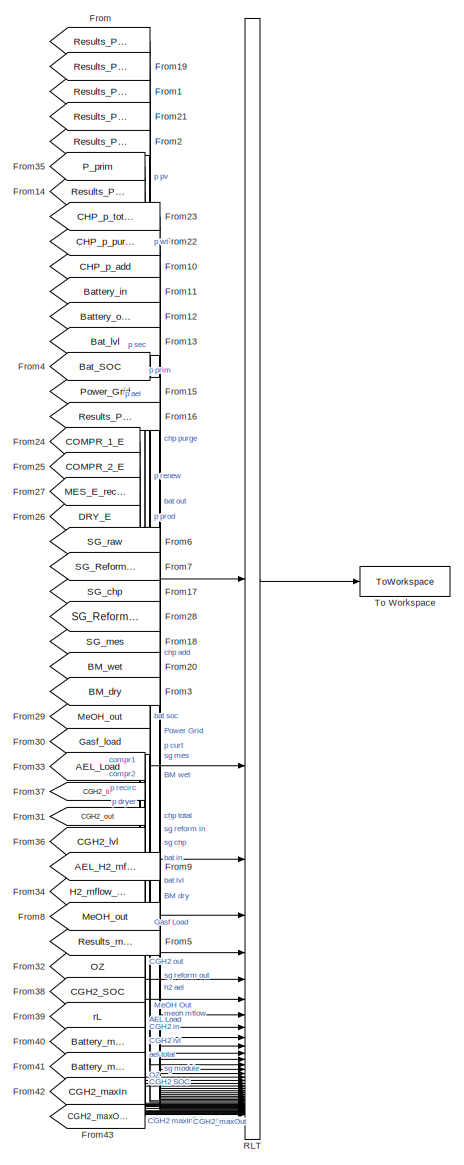
[diagram: root canvas - part 1/4, right side, full height]
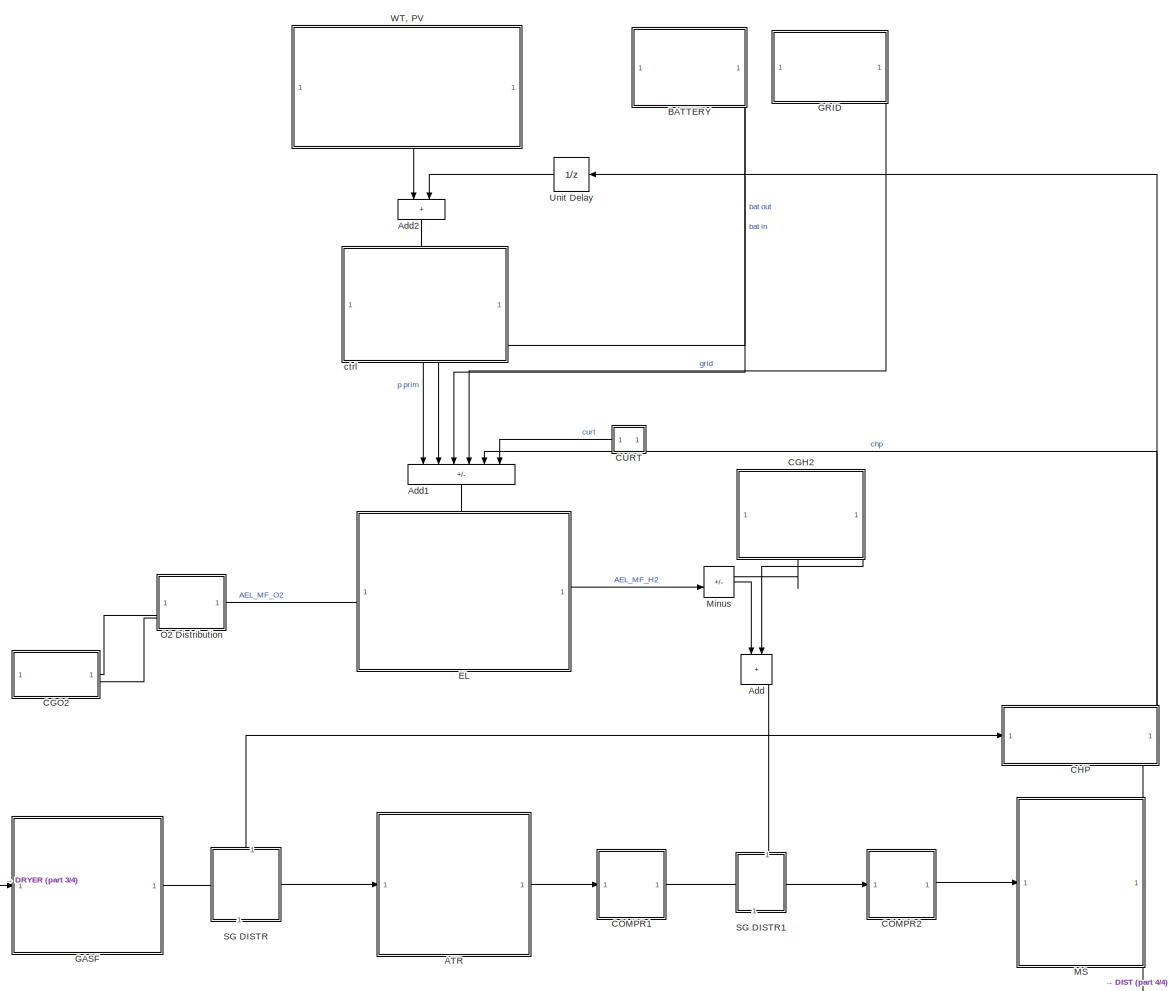
[diagram: root canvas - part 2/4, center side, full height]
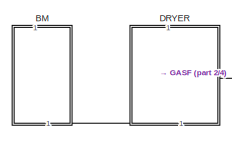
[diagram: root canvas - part 3/4, bottom left region]
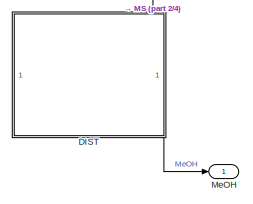
[diagram: root canvas - part 4/4, bottom center region]
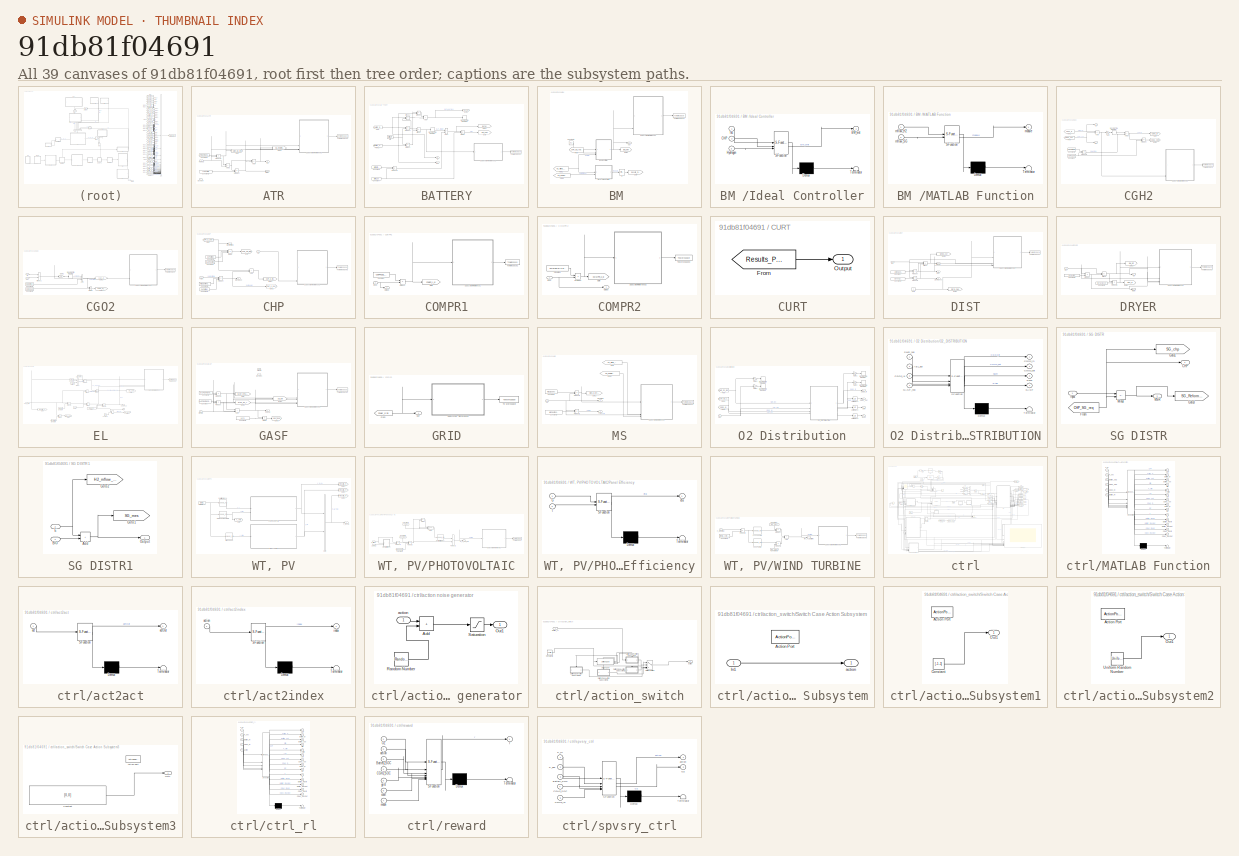
[diagram: thumbnail index - all 39 canvases of the model, root first then tree order]
MODEL slx_91db81f04691
KIND model
CONFIG AbsTol = auto
CONFIG EnableMultiTasking = off
CONFIG FixedStep = [global_ST]
CONFIG MaxStep = auto
CONFIG MinStep = auto
CONFIG RelTol = 1e-3
CONFIG SampleTimeConstraint = Unconstrained
CONFIG SolverName = FixedStepDiscrete
CONFIG StartTime = 0.0
CONFIG StopTime = 24*366
WORKSPACE source: mxarray member
WORKSPACE Var = 0
BLOCK [SubSystem] ATR
  PortSchema = {"entries":[{"content":{"sides":[{"content":{"connectorIds":["In1"]},"type":"ConnectorPlacement.EquallySpacedRectSide","uuid":"d95d7370-a768-4e71-99c5-23d50f67aabe"},{"content":{"connectorIds":["Out1"],"side":"RIGHT"},"type":"ConnectorPlacement.EquallySpacedRectSide","uuid":"3437d418-ce7d-423d-8668-067a2caa5d39"},{"content":{"connectorIds":["In2"],"side":"TOP"},"type":"ConnectorPlacement.EquallySp...<+395ch>
BLOCK [Sum] ATR/Add
  IconShape = rectangular
  Inputs = +-
BLOCK [Sum] ATR/Add1
  IconShape = rectangular
BLOCK [Constant] ATR/Constant1
  Value = ATR.demand.O2
BLOCK [Constant] ATR/Constant2
  Value = ATR.out.mfrac.Water
BLOCK [Goto] ATR/Goto
  GotoTag = SMR_O2_req
  TagVisibility = global
BLOCK [Goto] ATR/Goto2
  GotoTag = SG_Reform_out
  TagVisibility = global
BLOCK [Inport] ATR/Oxygen
  Port = 2
BLOCK [Product] ATR/Product
BLOCK [Product] ATR/Product1
BLOCK [Inport] ATR/Raw SG
BLOCK [Outport] ATR/SG
BLOCK [SubSystem] ATR/Subsystem Reference1
  PortSchema = {"entries":[{"content":{"sides":[{"content":{"connectorIds":["In1","In2","In9","In3","In4","In5","In10","In11","In12","In13","In6","In7","In8"]},"type":"ConnectorPlacement.EquallySpacedRectSide","uuid":"c0facf1f-1082-4e5e-a2dc-e6e5892eaa43"},{"content":{"connectorIds":["Out1"],"side":"RIGHT"},"type":"ConnectorPlacement.EquallySpacedRectSide","uuid":"0b7dd7b0-e6ba-4d46-903a-281e0aa5a817"},{"content...<+298ch>  <repeated x11 — deduplicated; at blocks: Subsystem Reference1, Subsystem Reference2>
  ReferencedSubsystem = PB2M_RltHub_002
BLOCK [ToWorkspace] ATR/To Workspace2
  FixptAsFi = on
  MaxDataPoints = inf
  SampleTime = -1
  VariableName = ATR
BLOCK [Outport] ATR/Water
  Port = 2
BLOCK [Sum] Add
  IconShape = rectangular
  NameLocation = left
BLOCK [Sum] Add1
  IconShape = rectangular
  Inputs = ++-++-
  NameLocation = left
BLOCK [Sum] Add2
  IconShape = rectangular
  NameLocation = left
BLOCK [SubSystem] BATTERY
  NameLocation = top
  PortSchema = {"entries":[{"content":{"sides":[{"content":{},"type":"ConnectorPlacement.EquallySpacedRectSide","uuid":"b156ae25-26b3-4eee-ac7f-e302bdaac2ab"},{"content":{"side":"RIGHT"},"type":"ConnectorPlacement.EquallySpacedRectSide","uuid":"f3a3b929-51c5-4419-b41e-ec6279a18565"},{"content":{"side":"TOP"},"type":"ConnectorPlacement.EquallySpacedRectSide","uuid":"01f6443f-63f0-4718-804f-9bad3a04ddfb"},{"conten...<+333ch>
BLOCK [Sum] BATTERY/Add
  IconShape = rectangular
BLOCK [Sum] BATTERY/Add1
  IconShape = rectangular
BLOCK [Constant] BATTERY/Constant
  Value = Bttry.Cap
BLOCK [Constant] BATTERY/Constant1
  Value = Bttry.initSOC
BLOCK [DiscreteIntegrator] BATTERY/Discrete-Time Integrator
  ICPrevOutput = DiscIntNeverNeededParam
  ICPrevScaledInput = DiscIntNeverNeededParam
  InitialConditionSetting = Auto
  SampleTime = -1
BLOCK [DiscreteIntegrator] BATTERY/Discrete-Time Integrator1
  ICPrevOutput = DiscIntNeverNeededParam
  ICPrevScaledInput = DiscIntNeverNeededParam
  InitialConditionSetting = Auto
  SampleTime = -1
BLOCK [Product] BATTERY/Divide
  Inputs = */
BLOCK [Product] BATTERY/Divide1
  Inputs = /*
BLOCK [Constant] BATTERY/Eff1
  Value = Bttry.eff
BLOCK [From] BATTERY/From
  GotoTag = Battery_in
  TagVisibility = global
BLOCK [From] BATTERY/From1
  GotoTag = Battery_out
  TagVisibility = global
BLOCK [Goto] BATTERY/Goto
  GotoTag = Bat_SOC
  TagVisibility = global
BLOCK [Goto] BATTERY/Goto1
  GotoTag = Bat_lvl
  TagVisibility = global
BLOCK [Goto] BATTERY/Goto2
  GotoTag = Bat_Cold
  TagVisibility = global
BLOCK [Outport] BATTERY/IN
  Port = 2
BLOCK [Sum] BATTERY/Minus
  IconShape = rectangular
  Inputs = +-
BLOCK [Sum] BATTERY/Minus1
  IconShape = rectangular
  Inputs = +-
BLOCK [Sum] BATTERY/Minus2
  IconShape = rectangular
  Inputs = +-
BLOCK [Outport] BATTERY/OUT
BLOCK [Product] BATTERY/Product
BLOCK [Product] BATTERY/Product1
BLOCK [SubSystem] BATTERY/Subsystem Reference1
  ReferencedSubsystem = PB2M_RltHub_002
BLOCK [ToWorkspace] BATTERY/To Workspace1
  FixptAsFi = on
  MaxDataPoints = inf
  SampleTime = -1
  VariableName = BAT
BLOCK [SubSystem] BM 
  PortSchema = {"entries":[{"content":{"sides":[{"content":{},"type":"ConnectorPlacement.EquallySpacedRectSide","uuid":"b6854826-029a-462c-abc7-1ad3a9c8d91d"},{"content":{"side":"RIGHT"},"type":"ConnectorPlacement.EquallySpacedRectSide","uuid":"c18fafb4-eebd-4b53-a025-0d4bc890a5f2"},{"content":{"connectorIds":["Out1"],"side":"TOP"},"type":"ConnectorPlacement.EquallySpacedRectSide","uuid":"39a115de-f541-49b1-95b5...<+200ch>
BLOCK [Constant] BM /Constant1
  Value = 10.1
BLOCK [From] BM /From
  GotoTag = CHP_SG_req
  TagVisibility = global
BLOCK [From] BM /From2
  GotoTag = H2_mflow_Total
  TagVisibility = global
BLOCK [From] BM /From3
  GotoTag = SG_Reform_out
  TagVisibility = global
BLOCK [Goto] BM /Goto
  GotoTag = Results_module
  TagVisibility = global
BLOCK [Goto] BM /Goto1
  GotoTag = BM_wet
  TagVisibility = global
BLOCK [InitialCondition] BM /IC
BLOCK [SubSystem] BM /Ideal Controller
  ErrorFcn = Stateflow.Translate.translate
  PermitHierarchicalResolution = ExplicitOnly
  SFBlockType = MATLAB Function
  TreatAsAtomicUnit = on
BLOCK [Demux] BM /Ideal Controller/ Demux 
  Outputs = 1
BLOCK [S-Function] BM /Ideal Controller/ SFunction 
  EnableBusSupport = on
  FunctionName = sf_sfun
  Parameters = ATR,DRY,GASF
  PortCounts = [3 2]
  SFcnIsStateOwnerBlock = off
  SFunctionDeploymentMode = off
  Tag = Stateflow S-Function 7
BLOCK [Terminator] BM /Ideal Controller/ Terminator 
BLOCK [Outport] BM /Ideal Controller/BM_wet
BLOCK [Inport] BM /Ideal Controller/CHP
  Port = 2
BLOCK [Inport] BM /Ideal Controller/Hydrogen
  Port = 3
BLOCK [Inport] BM /Ideal Controller/fac
BLOCK [SubSystem] BM /MATLAB Function
  ErrorFcn = Stateflow.Translate.translate
  PermitHierarchicalResolution = ExplicitOnly
  SFBlockType = MATLAB Function
  TreatAsAtomicUnit = on
BLOCK [Demux] BM /MATLAB Function/ Demux 
  Outputs = 1
BLOCK [S-Function] BM /MATLAB Function/ SFunction 
  EnableBusSupport = on
  FunctionName = sf_sfun
  Parameters = ATR,th
  PortCounts = [2 2]
  SFcnIsStateOwnerBlock = off
  SFunctionDeploymentMode = off
  Tag = Stateflow S-Function 5
BLOCK [Terminator] BM /MATLAB Function/ Terminator 
BLOCK [Inport] BM /MATLAB Function/mflow_H2
BLOCK [Inport] BM /MATLAB Function/mflow_SG
  Port = 2
BLOCK [Outport] BM /MATLAB Function/module
BLOCK [SubSystem] BM /Subsystem Reference1
  ReferencedSubsystem = PB2M_RltHub_002
BLOCK [ToWorkspace] BM /To Workspace1
  FixptAsFi = on
  MaxDataPoints = inf
  SampleTime = -1
  VariableName = BM
BLOCK [Outport] BM /out
BLOCK [SubSystem] CGH2
  NameLocation = right
  PortSchema = {"entries":[{"content":{"sides":[{"content":{"connectorIds":["Out2"]},"type":"ConnectorPlacement.EquallySpacedRectSide","uuid":"c54b6fc4-3adc-4d22-bd7c-d1fb71d09cc2"},{"content":{"side":"RIGHT"},"type":"ConnectorPlacement.EquallySpacedRectSide","uuid":"cb46d28f-124e-4362-a527-4ffafd6ca6aa"},{"content":{"side":"TOP"},"type":"ConnectorPlacement.EquallySpacedRectSide","uuid":"cd2bfd56-c3bb-4b21-97bf-...<+349ch>
BLOCK [Sum] CGH2/Add
  IconShape = rectangular
  Inputs = +-
BLOCK [Sum] CGH2/Add2
  IconShape = rectangular
BLOCK [Constant] CGH2/Constant
  Value = CGH2.Cap
BLOCK [Constant] CGH2/Constant1
  Value = CGH2.initSOC
BLOCK [DiscreteIntegrator] CGH2/Discrete-Time Integrator
  ICPrevOutput = DiscIntNeverNeededParam
  ICPrevScaledInput = DiscIntNeverNeededParam
  InitialConditionSetting = Auto
  SampleTime = -1
BLOCK [From] CGH2/From
  GotoTag = CGH2_out
  TagVisibility = global
BLOCK [From] CGH2/From1
  GotoTag = CGH2_in
  TagVisibility = global
BLOCK [Gain] CGH2/Gain
  Gain = 3.6
BLOCK [Goto] CGH2/Goto
  GotoTag = CGH2_lvl
  TagVisibility = global
BLOCK [Goto] CGH2/Goto1
  GotoTag = CGH2_SOC
  TagVisibility = global
BLOCK [Outport] CGH2/In
  Port = 2
BLOCK [Outport] CGH2/Out
BLOCK [Product] CGH2/Product
  Inputs = */
BLOCK [Product] CGH2/Product1
BLOCK [SubSystem] CGH2/Subsystem Reference2
  ReferencedSubsystem = PB2M_RltHub_002
BLOCK [ToWorkspace] CGH2/To Workspace
  FixptAsFi = on
  MaxDataPoints = inf
  SampleTime = -1
  VariableName = CGH2
BLOCK [SubSystem] CGO2
  PortSchema = {"entries":[{"content":{"sides":[{"content":{},"type":"ConnectorPlacement.EquallySpacedRectSide","uuid":"5fd0e465-b758-40c5-99c0-bd502cf80220"},{"content":{"side":"RIGHT"},"type":"ConnectorPlacement.EquallySpacedRectSide","uuid":"8c2bf71d-dd8a-4c38-9726-2100ecfb4157"},{"content":{"connectorIds":["In1","In2"],"side":"TOP"},"type":"ConnectorPlacement.EquallySpacedRectSide","uuid":"9b00925e-eb9b-456e...<+205ch>
BLOCK [Sum] CGO2/Add
  IconShape = rectangular
BLOCK [Constant] CGO2/Constant1
  Value = CGO2.Cap
BLOCK [Constant] CGO2/Constant2
  Value = CGO2.initLvl
BLOCK [DiscreteIntegrator] CGO2/Discrete-Time Integrator
  ICPrevOutput = DiscIntNeverNeededParam
  ICPrevScaledInput = DiscIntNeverNeededParam
  InitialConditionSetting = Auto
  SampleTime = -1
BLOCK [Product] CGO2/Divide
  Inputs = */
BLOCK [Gain] CGO2/Gain2
  Gain = 3.6
BLOCK [Goto] CGO2/Goto1
  GotoTag = CGO2_lvl_norm
  TagVisibility = global
BLOCK [Goto] CGO2/Goto2
  GotoTag = CGO2_lvl
  TagVisibility = global
BLOCK [Sum] CGO2/Minus1
  IconShape = rectangular
  Inputs = +-
BLOCK [SubSystem] CGO2/Subsystem Reference2
  ReferencedSubsystem = PB2M_RltHub_002
BLOCK [ToWorkspace] CGO2/To Workspace
  FixptAsFi = on
  MaxDataPoints = inf
  SampleTime = -1
  VariableName = CGO2
BLOCK [Inport] CGO2/in
BLOCK [Inport] CGO2/out
  Port = 2
BLOCK [SubSystem] CHP
  NameLocation = right
  PortSchema = {"entries":[{"content":{"sides":[{"content":{"connectorIds":["In1"]},"type":"ConnectorPlacement.EquallySpacedRectSide","uuid":"455e4cb2-b7ce-40b3-9267-45576cb92a35"},{"content":{"side":"RIGHT"},"type":"ConnectorPlacement.EquallySpacedRectSide","uuid":"26266506-6e66-4bc0-bccd-a9e779dcae16"},{"content":{"connectorIds":["Out1","Out2"],"side":"TOP"},"type":"ConnectorPlacement.EquallySpacedRectSide","u...<+378ch>
BLOCK [Sum] CHP/Add
  IconShape = rectangular
BLOCK [Constant] CHP/Constant1
  Value = GASF.out.HV
BLOCK [Constant] CHP/Constant2
  Value = CHP.eff.elec
BLOCK [Constant] CHP/Constant3
  Value = MES.out.Purge.HV
BLOCK [Constant] CHP/Constant4
  Value = CHP.eff.elec
BLOCK [Product] CHP/Divide
  Inputs = *//
BLOCK [Outport] CHP/Elec Base
  Port = 2
BLOCK [Outport] CHP/Elec from req
BLOCK [From] CHP/From
  GotoTag = CHP_p_add
  TagVisibility = global
BLOCK [Goto] CHP/Goto
  GotoTag = CHP_SG_req
  TagVisibility = global
BLOCK [Goto] CHP/Goto1
  GotoTag = CHP_p_total
  TagVisibility = global
BLOCK [Goto] CHP/Goto2
  GotoTag = CHP_p_purge
  TagVisibility = global
BLOCK [Product] CHP/Product
  Inputs = ***
BLOCK [Inport] CHP/Purge
  Port = 2
BLOCK [Inport] CHP/SG
BLOCK [SubSystem] CHP/Subsystem Reference1
  ReferencedSubsystem = PB2M_RltHub_002
BLOCK [ToWorkspace] CHP/To Workspace1
  FixptAsFi = on
  MaxDataPoints = inf
  SampleTime = -1
  VariableName = CHP
BLOCK [SubSystem] COMPR1
BLOCK [Constant] COMPR1/Constant
  Value = COMPR.SG.E_spec
BLOCK [Goto] COMPR1/Goto
  GotoTag = COMPR_1_E
  TagVisibility = global
BLOCK [Inport] COMPR1/Input
BLOCK [Outport] COMPR1/Output
BLOCK [Product] COMPR1/Product
BLOCK [SubSystem] COMPR1/Subsystem Reference1
  ReferencedSubsystem = PB2M_RltHub_002
BLOCK [ToWorkspace] COMPR1/To Workspace2
  FixptAsFi = on
  MaxDataPoints = inf
  SampleTime = -1
  VariableName = COMPR1
BLOCK [SubSystem] COMPR2
BLOCK [Constant] COMPR2/Constant
  Value = COMPR.MIX.E_spec
BLOCK [Goto] COMPR2/Goto
  GotoTag = COMPR_2_E
  TagVisibility = global
BLOCK [Inport] COMPR2/Input
BLOCK [Outport] COMPR2/Output
BLOCK [Product] COMPR2/Product
BLOCK [SubSystem] COMPR2/Subsystem Reference2
  ReferencedSubsystem = PB2M_RltHub_002
BLOCK [ToWorkspace] COMPR2/To Workspace2
  FixptAsFi = on
  MaxDataPoints = inf
  SampleTime = -1
  VariableName = COMPR2
BLOCK [SubSystem] CURT
  PortSchema = {"entries":[{"content":{"sides":[{"content":{"connectorIds":["Out1"]},"type":"ConnectorPlacement.EquallySpacedRectSide","uuid":"455e4cb2-b7ce-40b3-9267-45576cb92a35"},{"content":{"side":"RIGHT"},"type":"ConnectorPlacement.EquallySpacedRectSide","uuid":"26266506-6e66-4bc0-bccd-a9e779dcae16"},{"content":{"side":"TOP"},"type":"ConnectorPlacement.EquallySpacedRectSide","uuid":"0bfe460e-97a8-4cdd-8918-...<+199ch>
BLOCK [From] CURT/From
  GotoTag = Results_P_curt
  TagVisibility = global
BLOCK [Outport] CURT/Output
BLOCK [SubSystem] DIST
  PortSchema = {"entries":[{"content":{"sides":[{"content":{},"type":"ConnectorPlacement.EquallySpacedRectSide","uuid":"9bb20e76-c8c0-4ce3-bfa2-fd978c659bcc"},{"content":{"connectorIds":["Out1","Out2"],"side":"RIGHT"},"type":"ConnectorPlacement.EquallySpacedRectSide","uuid":"12d31df4-77c9-4a5c-9a6c-fd7c89038c05"},{"content":{"connectorIds":["In1"],"side":"TOP"},"type":"ConnectorPlacement.EquallySpacedRectSide","...<+380ch>
BLOCK [Constant] DIST/Constant
  Value = 1 - MES.out.mfracs(5)
BLOCK [Constant] DIST/Constant1
  Value = DIST.out.LightGases
BLOCK [Goto] DIST/Goto1
  GotoTag = Dist_Q_med
  TagVisibility = global
BLOCK [Goto] DIST/Goto2
  GotoTag = MeOH_out
  TagVisibility = global
BLOCK [Outport] DIST/Light Gases
  Port = 2
BLOCK [Outport] DIST/MeOH
  Port = 3
BLOCK [Sum] DIST/Minus
  IconShape = rectangular
  Inputs = +--
BLOCK [Product] DIST/Product
BLOCK [Product] DIST/Product1
BLOCK [SubSystem] DIST/Subsystem Reference2
  ReferencedSubsystem = PB2M_RltHub_002
BLOCK [ToWorkspace] DIST/To Workspace1
  FixptAsFi = on
  MaxDataPoints = inf
  SampleTime = -1
  VariableName = DIST
BLOCK [Outport] DIST/Water
BLOCK [Constant] DIST/Zero
  OutDataTypeStr = Inherit: Inherit via back propagation
  Value = 0
BLOCK [Inport] DIST/raw
BLOCK [SubSystem] DRYER
  PortSchema = {"entries":[{"content":{"sides":[{"content":{},"type":"ConnectorPlacement.EquallySpacedRectSide","uuid":"4ebfcccc-776f-4872-9d0b-9643b5960bad"},{"content":{"connectorIds":["Out1"],"side":"RIGHT"},"type":"ConnectorPlacement.EquallySpacedRectSide","uuid":"52af1a20-21ba-42da-ac0d-5cc3ed928415"},{"content":{"connectorIds":["Out2"],"side":"TOP"},"type":"ConnectorPlacement.EquallySpacedRectSide","uuid":...<+373ch>
BLOCK [Constant] DRYER/Constant1
  Value = DRY.demand.P
BLOCK [Constant] DRYER/Constant2
  Value = DRY.out.mfrac.H2O
BLOCK [Goto] DRYER/Goto1
  GotoTag = DRY_E
  TagVisibility = global
BLOCK [Goto] DRYER/Goto2
  GotoTag = BM_dry
  TagVisibility = global
BLOCK [Sum] DRYER/Minus
  IconShape = rectangular
  Inputs = +-
BLOCK [Product] DRYER/Product
BLOCK [Product] DRYER/Product3
BLOCK [SubSystem] DRYER/Subsystem Reference2
  ReferencedSubsystem = PB2M_RltHub_002
BLOCK [ToWorkspace] DRYER/To Workspace2
  FixptAsFi = on
  MaxDataPoints = inf
  SampleTime = -1
  VariableName = DRY
BLOCK [Outport] DRYER/Water
BLOCK [Outport] DRYER/dry
  Port = 2
BLOCK [Inport] DRYER/wet
BLOCK [SubSystem] EL
  PortSchema = {"entries":[{"content":{"sides":[{"content":{"connectorIds":["Out2"]},"type":"ConnectorPlacement.EquallySpacedRectSide","uuid":"e86b81d9-d45f-45ad-8c80-2ef5c9159145"},{"content":{"connectorIds":["Out1"],"side":"RIGHT"},"type":"ConnectorPlacement.EquallySpacedRectSide","uuid":"b091bd34-fe91-455d-8135-92fc1e1b5bd7"},{"content":{"connectorIds":["In1"],"side":"TOP"},"type":"ConnectorPlacement.EquallyS...<+246ch>
BLOCK [Outport] EL/AEL_MF_O2
  Port = 2
BLOCK [Inport] EL/AEL_P_MW
BLOCK [Constant] EL/AEL_const
  Value = 0.00314
BLOCK [Constant] EL/Constant
  Value = AEL.eff
BLOCK [Constant] EL/Constant1
  Value = eps
BLOCK [Constant] EL/Constant2
  Value = AEL.T
BLOCK [Constant] EL/Constant3
  Value = AEL.Pmax
BLOCK [Product] EL/Divide1
  Inputs = */
BLOCK [Product] EL/Divide2
  Inputs = */
BLOCK [From] EL/From
  GotoTag = T_Amb
  TagVisibility = global
BLOCK [Goto] EL/Goto1
  GotoTag = AEL_Cold
  TagVisibility = global
BLOCK [Goto] EL/Goto2
  GotoTag = AEL_H2_mflow
  TagVisibility = global
BLOCK [Goto] EL/Goto3
  GotoTag = Results_P_AEL
  TagVisibility = global
BLOCK [Goto] EL/Goto4
  GotoTag = AEL_Load
  TagVisibility = global
BLOCK [Outport] EL/H2
BLOCK [Constant] EL/HV H1
  Value = 1/th.M_H2*0.5*th.M_O2
BLOCK [Constant] EL/HV H2
  Value = 120
BLOCK [MinMax] EL/Max
  Function = max
  Inputs = 2
BLOCK [Sum] EL/Minus1
  IconShape = rectangular
  Inputs = +-
BLOCK [Sum] EL/Minus2
  IconShape = rectangular
  Inputs = +-
BLOCK [Sum] EL/Minus3
  IconShape = rectangular
  Inputs = -+
BLOCK [Product] EL/Product1
BLOCK [Product] EL/Product2
BLOCK [Product] EL/Product3
BLOCK [SubSystem] EL/Subsystem Reference2
  ReferencedSubsystem = PB2M_RltHub_002
BLOCK [ToWorkspace] EL/To Workspace1
  FixptAsFi = on
  MaxDataPoints = inf
  SampleTime = -1
  VariableName = EL
BLOCK [From] From
  GotoTag = Results_P_PV
  TagVisibility = global
BLOCK [From] From1
  GotoTag = Results_P_renew
  TagVisibility = global
BLOCK [From] From10
  GotoTag = CHP_p_add
  TagVisibility = global
BLOCK [From] From11
  GotoTag = Battery_in
  TagVisibility = global
BLOCK [From] From12
  GotoTag = Battery_out
  TagVisibility = global
BLOCK [From] From13
  GotoTag = Bat_lvl
  TagVisibility = global
BLOCK [From] From14
  GotoTag = Results_P_AEL
  TagVisibility = global
BLOCK [From] From15
  GotoTag = Power_Grid
  TagVisibility = global
BLOCK [From] From16
  GotoTag = Results_P_curt
  TagVisibility = global
BLOCK [From] From17
  GotoTag = SG_chp
  TagVisibility = global
BLOCK [From] From18
  GotoTag = SG_mes
  TagVisibility = global
BLOCK [From] From19
  GotoTag = Results_P_WT
  TagVisibility = global
BLOCK [From] From2
  GotoTag = Results_P_sec
  TagVisibility = global
BLOCK [From] From20
  GotoTag = BM_wet
  TagVisibility = global
BLOCK [From] From21
  GotoTag = Results_P_prod
  TagVisibility = global
BLOCK [From] From22
  GotoTag = CHP_p_purge
  TagVisibility = global
BLOCK [From] From23
  GotoTag = CHP_p_total
  TagVisibility = global
BLOCK [From] From24
  GotoTag = COMPR_1_E
  TagVisibility = global
BLOCK [From] From25
  GotoTag = COMPR_2_E
  TagVisibility = global
BLOCK [From] From26
  GotoTag = DRY_E
  TagVisibility = global
BLOCK [From] From27
  GotoTag = MES_E_recirc
  TagVisibility = global
BLOCK [From] From28
  GotoTag = SG_Reform_out
  TagVisibility = global
BLOCK [From] From29
  GotoTag = MeOH_out
  TagVisibility = global
BLOCK [From] From3
  GotoTag = BM_dry
  TagVisibility = global
BLOCK [From] From30
  GotoTag = Gasf_load
  TagVisibility = global
BLOCK [From] From31
  GotoTag = CGH2_out
  TagVisibility = global
BLOCK [From] From32
  GotoTag = OZ
  TagVisibility = global
BLOCK [From] From33
  GotoTag = AEL_Load
  TagVisibility = global
BLOCK [From] From34
  GotoTag = H2_mflow_Total
  TagVisibility = global
BLOCK [From] From35
  GotoTag = P_prim
  TagVisibility = global
BLOCK [From] From36
  GotoTag = CGH2_lvl
  TagVisibility = global
BLOCK [From] From37
  GotoTag = CGH2_in
  TagVisibility = global
BLOCK [From] From38
  GotoTag = CGH2_SOC
  TagVisibility = global
BLOCK [From] From39
  GotoTag = rL
  TagVisibility = global
BLOCK [From] From4
  GotoTag = Bat_SOC
  TagVisibility = global
BLOCK [From] From40
  GotoTag = Battery_maxIn
  TagVisibility = global
BLOCK [From] From41
  GotoTag = Battery_maxOut
  TagVisibility = global
BLOCK [From] From42
  GotoTag = CGH2_maxIn
  TagVisibility = global
BLOCK [From] From43
  GotoTag = CGH2_maxOut
  TagVisibility = global
BLOCK [From] From5
  GotoTag = Results_module
  TagVisibility = global
BLOCK [From] From6
  GotoTag = SG_raw
  TagVisibility = global
BLOCK [From] From7
  GotoTag = SG_Reform_in
  TagVisibility = global
BLOCK [From] From8
  GotoTag = MeOH_out
  TagVisibility = global
BLOCK [From] From9
  GotoTag = AEL_H2_mflow
  TagVisibility = global
BLOCK [SubSystem] GASF
  PortSchema = {"entries":[{"content":{"sides":[{"content":{"connectorIds":["In1"]},"type":"ConnectorPlacement.EquallySpacedRectSide","uuid":"5e6aa46e-d817-493b-8b8b-abb4dd1f40ec"},{"content":{"connectorIds":["Out1"],"side":"RIGHT"},"type":"ConnectorPlacement.EquallySpacedRectSide","uuid":"1936bb9e-e226-4528-9325-ecfa0f913ec2"},{"content":{"connectorIds":["In2","In3"],"side":"TOP"},"type":"ConnectorPlacement.Equ...<+251ch>
BLOCK [Sum] GASF/Add
  IconShape = rectangular
  Inputs = 3
BLOCK [Constant] GASF/Constant
  Value = GASF.demand.O2
BLOCK [Constant] GASF/Constant1
  Value = GASF.demand.Steam
BLOCK [Constant] GASF/Constant2
  Value = 0.975
BLOCK [Product] GASF/Divide
  Inputs = */
BLOCK [Inport] GASF/Dry BM
BLOCK [Goto] GASF/Goto
  GotoTag = GASF_STEAM_req
  TagVisibility = global
BLOCK [Goto] GASF/Goto1
  GotoTag = GASF_O2_req
  TagVisibility = global
BLOCK [Goto] GASF/Goto2
  GotoTag = SG_raw
  TagVisibility = global
BLOCK [Goto] GASF/Goto3
  GotoTag = Gasf_load
  TagVisibility = global
BLOCK [Inport] GASF/Oxygen
  Port = 2
BLOCK [Product] GASF/Product
BLOCK [Product] GASF/Product1
BLOCK [Outport] GASF/Raw SG
BLOCK [Inport] GASF/Steam
  Port = 3
BLOCK [SubSystem] GASF/Subsystem Reference2
  ReferencedSubsystem = PB2M_RltHub_002
BLOCK [ToWorkspace] GASF/To Workspace1
  FixptAsFi = on
  MaxDataPoints = inf
  SampleTime = -1
  VariableName = GASF
BLOCK [SubSystem] GRID
  NameLocation = top
  PortSchema = {"entries":[{"content":{"sides":[{"content":{},"type":"ConnectorPlacement.EquallySpacedRectSide","uuid":"13ddf689-c473-4fae-8488-05ba2c53be01"},{"content":{"side":"RIGHT"},"type":"ConnectorPlacement.EquallySpacedRectSide","uuid":"3edd6540-09f8-47a0-8af0-925a1a207bbe"},{"content":{"side":"TOP"},"type":"ConnectorPlacement.EquallySpacedRectSide","uuid":"e7e0af70-0c4e-4701-890f-2bc2f1b60263"},{"conten...<+326ch>
BLOCK [From] GRID/From
  GotoTag = Power_Grid
  TagVisibility = global
BLOCK [Outport] GRID/OUT
BLOCK [SubSystem] GRID/Subsystem Reference1
  PortSchema = {"entries":[{"content":{"sides":[{"content":{"connectorIds":["In1","In2","In9","In10","In11","In12","In13","In3","In4","In5","In6","In7","In8"]},"type":"ConnectorPlacement.EquallySpacedRectSide","uuid":"71ace47f-78c1-4f28-9c07-d00d26defc7b"},{"content":{"connectorIds":["Out1"],"side":"RIGHT"},"type":"ConnectorPlacement.EquallySpacedRectSide","uuid":"ebbfa327-79cd-4127-8529-58e9fdc5f229"},{"content...<+298ch>
  ReferencedSubsystem = PB2M_RltHub_002
BLOCK [ToWorkspace] GRID/To Workspace
  FixptAsFi = on
  MaxDataPoints = inf
  SampleTime = -1
  VariableName = GRID
BLOCK [SubSystem] MS
  PortSchema = {"entries":[{"content":{"sides":[{"content":{"connectorIds":["In1"]},"type":"ConnectorPlacement.EquallySpacedRectSide","uuid":"7c68cb95-e770-413e-a40e-672fd8604812"},{"content":{"side":"RIGHT"},"type":"ConnectorPlacement.EquallySpacedRectSide","uuid":"6240a65a-2dbc-4a6e-817e-2ab31946396e"},{"content":{"connectorIds":["Out2"],"side":"TOP"},"type":"ConnectorPlacement.EquallySpacedRectSide","uuid":"1...<+372ch>
BLOCK [Constant] MS/Constant1
  Value = MES.out.Purge.mfrac
BLOCK [Constant] MS/Constant2
  Value = MES.Espec
BLOCK [From] MS/From
  GotoTag = H2_mflow_Total
  TagVisibility = global
BLOCK [From] MS/From1
  GotoTag = SG_Reform_out
  TagVisibility = global
BLOCK [Goto] MS/Goto2
  GotoTag = MES_E_recirc
  TagVisibility = global
BLOCK [Outport] MS/MeOH raw
BLOCK [Product] MS/Product1
BLOCK [Product] MS/Product2
BLOCK [Outport] MS/Purge
  Port = 2
BLOCK [Inport] MS/SG
BLOCK [SubSystem] MS/Subsystem Reference2
  ReferencedSubsystem = PB2M_RltHub_002
BLOCK [ToWorkspace] MS/To Workspace1
  FixptAsFi = on
  MaxDataPoints = inf
  SampleTime = -1
  VariableName = MES
BLOCK [Outport] MeOH
BLOCK [Sum] Minus
  IconShape = rectangular
  Inputs = -+
BLOCK [SubSystem] O2 Distribution
  PortSchema = {"entries":[{"content":{"sides":[{"content":{"connectorIds":["Out3","Out4"]},"type":"ConnectorPlacement.EquallySpacedRectSide","uuid":"30156f9c-db5e-4257-aeed-83f2c1c2e5bf"},{"content":{"connectorIds":["In1","Out1","Out2"],"side":"RIGHT"},"type":"ConnectorPlacement.EquallySpacedRectSide","uuid":"c3a4c4df-5b27-475f-87a9-b45da9a3b436"},{"content":{"side":"TOP"},"type":"ConnectorPlacement.EquallySpac...<+243ch>
BLOCK [Inport] O2 Distribution/AEL
BLOCK [Outport] O2 Distribution/CGO2_in
  Port = 3
BLOCK [Outport] O2 Distribution/CGO2_out
  Port = 4
BLOCK [DiscreteIntegrator] O2 Distribution/Discrete-Time Integrator
  ICPrevOutput = DiscIntNeverNeededParam
  ICPrevScaledInput = DiscIntNeverNeededParam
  InitialConditionSetting = Auto
  SampleTime = -1
BLOCK [DiscreteIntegrator] O2 Distribution/Discrete-Time Integrator1
  ICPrevOutput = DiscIntNeverNeededParam
  ICPrevScaledInput = DiscIntNeverNeededParam
  InitialConditionSetting = Auto
  SampleTime = -1
BLOCK [DiscreteIntegrator] O2 Distribution/Discrete-Time Integrator2
  ICPrevOutput = DiscIntNeverNeededParam
  ICPrevScaledInput = DiscIntNeverNeededParam
  InitialConditionSetting = Auto
  SampleTime = -1
BLOCK [DiscreteIntegrator] O2 Distribution/Discrete-Time Integrator3
  ICPrevOutput = DiscIntNeverNeededParam
  ICPrevScaledInput = DiscIntNeverNeededParam
  InitialConditionSetting = Auto
  SampleTime = -1
BLOCK [From] O2 Distribution/From
  GotoTag = SMR_O2_req
  TagVisibility = global
BLOCK [From] O2 Distribution/From1
  GotoTag = GASF_O2_req
  TagVisibility = global
BLOCK [From] O2 Distribution/From2
  GotoTag = CGO2_lvl
  TagVisibility = global
BLOCK [Outport] O2 Distribution/GASF
  Port = 2
BLOCK [Gain] O2 Distribution/Gain1
  Gain = 3.6
BLOCK [Gain] O2 Distribution/Gain2
  Gain = 3.6
BLOCK [Gain] O2 Distribution/Gain3
  Gain = 3.6
BLOCK [Gain] O2 Distribution/Gain4
  Gain = 3.6
BLOCK [SubSystem] O2 Distribution/O2_DISTRIBUTION
  ErrorFcn = Stateflow.Translate.translate
  PermitHierarchicalResolution = ExplicitOnly
  PortSchema = {"entries":[{"content":{"sides":[{"content":{"connectorIds":["In1","In4","In3","In2"]},"type":"ConnectorPlacement.EquallySpacedRectSide","uuid":"621105b3-c3dc-4330-bdef-d993cdecb60c"},{"content":{"connectorIds":["Out1","Out2","Out3","Out4"],"side":"RIGHT"},"type":"ConnectorPlacement.EquallySpacedRectSide","uuid":"49dd08d2-12bd-4f9c-8bf9-bd4ad8fb6d9e"},{"content":{"side":"TOP"},"type":"ConnectorPla...<+261ch>
  SFBlockType = Chart
  TreatAsAtomicUnit = on
BLOCK [Demux] O2 Distribution/O2_DISTRIBUTION/ Demux 
  Outputs = 1
BLOCK [S-Function] O2 Distribution/O2_DISTRIBUTION/ SFunction 
  EnableBusSupport = on
  FunctionName = sf_sfun
  PortCounts = [4 5]
  SFcnIsStateOwnerBlock = off
  SFunctionDeploymentMode = off
  Tag = Stateflow S-Function 1
BLOCK [Terminator] O2 Distribution/O2_DISTRIBUTION/ Terminator 
BLOCK [Inport] O2 Distribution/O2_DISTRIBUTION/AEL_act
  Port = 2
BLOCK [Outport] O2 Distribution/O2_DISTRIBUTION/CGO2_in
BLOCK [Inport] O2 Distribution/O2_DISTRIBUTION/CGO2_lvl
  Port = 3
BLOCK [Outport] O2 Distribution/O2_DISTRIBUTION/CGO2_out
  Port = 2
BLOCK [Outport] O2 Distribution/O2_DISTRIBUTION/GASF
  Port = 4
BLOCK [Inport] O2 Distribution/O2_DISTRIBUTION/GASF_req
  Port = 4
BLOCK [Outport] O2 Distribution/O2_DISTRIBUTION/SMR
  Port = 3
BLOCK [Inport] O2 Distribution/O2_DISTRIBUTION/SMR_req
BLOCK [Outport] O2 Distribution/SMR
BLOCK [UnitDelay] O2 Distribution/Unit Delay1
  HasFrameUpgradeWarning = on
  SampleTime = -1
BLOCK [UnitDelay] O2 Distribution/Unit Delay2
  HasFrameUpgradeWarning = on
  SampleTime = -1
BLOCK [UnitDelay] O2 Distribution/Unit Delay3
  HasFrameUpgradeWarning = on
  SampleTime = -1
BLOCK [BusCreator] RLT
  DisplayOption = bar
  InheritFromInputs = on
  Inputs = 44
BLOCK [SubSystem] SG DISTR
  PortSchema = {"entries":[{"content":{"sides":[{"content":{},"type":"ConnectorPlacement.EquallySpacedRectSide","uuid":"e86b81d9-d45f-45ad-8c80-2ef5c9159145"},{"content":{"connectorIds":["Out1"],"side":"RIGHT"},"type":"ConnectorPlacement.EquallySpacedRectSide","uuid":"b091bd34-fe91-455d-8135-92fc1e1b5bd7"},{"content":{"connectorIds":["In1"],"side":"TOP"},"type":"ConnectorPlacement.EquallySpacedRectSide","uuid":"...<+373ch>
BLOCK [Outport] SG DISTR/CHP
BLOCK [From] SG DISTR/From
  GotoTag = CHP_SG_req
  TagVisibility = global
BLOCK [Goto] SG DISTR/Goto1
  GotoTag = SG_chp
  TagVisibility = global
BLOCK [Goto] SG DISTR/Goto3
  GotoTag = SG_Reform_in
  TagVisibility = global
BLOCK [Inport] SG DISTR/Input
BLOCK [Outport] SG DISTR/MSR
  Port = 2
BLOCK [Sum] SG DISTR/Minus
  IconShape = rectangular
  Inputs = +-
BLOCK [SubSystem] SG DISTR1
  PortSchema = {"entries":[{"content":{"sides":[{"content":{},"type":"ConnectorPlacement.EquallySpacedRectSide","uuid":"e9c91cab-8c69-4152-b789-7325d2e32e4b"},{"content":{"connectorIds":["In2"],"side":"RIGHT"},"type":"ConnectorPlacement.EquallySpacedRectSide","uuid":"b801369b-5c93-4438-bd90-0992b326086c"},{"content":{"connectorIds":["In1"],"side":"TOP"},"type":"ConnectorPlacement.EquallySpacedRectSide","uuid":"e...<+372ch>
BLOCK [Sum] SG DISTR1/Add
  IconShape = rectangular
BLOCK [Inport] SG DISTR1/BIO
BLOCK [Inport] SG DISTR1/E
  Port = 2
BLOCK [Goto] SG DISTR1/Goto1
  GotoTag = SG_mes
  TagVisibility = global
BLOCK [Goto] SG DISTR1/Goto2
  GotoTag = H2_mflow_Total
  TagVisibility = global
BLOCK [Outport] SG DISTR1/Output
BLOCK [ToWorkspace] To Workspace
  FixptAsFi = on
  MaxDataPoints = inf
  SampleTime = -1
  VariableName = RLT_hub
BLOCK [UnitDelay] Unit Delay
  HasFrameUpgradeWarning = on
  SampleTime = -1
BLOCK [SubSystem] WT, PV
  PortSchema = {"entries":[{"content":{"sides":[{"content":{},"type":"ConnectorPlacement.EquallySpacedRectSide","uuid":"8a2d1ae0-dccb-4b14-8547-5eeedb1731af"},{"content":{"side":"RIGHT"},"type":"ConnectorPlacement.EquallySpacedRectSide","uuid":"3fb157a2-f839-4f36-8a45-db822d022818"},{"content":{"side":"TOP"},"type":"ConnectorPlacement.EquallySpacedRectSide","uuid":"528eda02-61b1-46fc-814d-d4347d4497c7"},{"conten...<+326ch>
BLOCK [Lookup_n-D] WT, PV/Ambient Temperature
  BreakpointsForDimension1 = global_time
  ExtrapMethod = Clip
  InputPortMap = u0
  InternalRulePriority = Speed
  NumberOfTableDimensions = 1
  RndMeth = Simplest
  Table = [AMB.LU.t_air]'
BLOCK [DigitalClock] WT, PV/Digital Clock
  SampleTime = [global_ST]
BLOCK [Goto] WT, PV/Goto
  GotoTag = T_Amb
  TagVisibility = global
BLOCK [Goto] WT, PV/Goto1
  GotoTag = Results_P_PV
  TagVisibility = global
BLOCK [Goto] WT, PV/Goto2
  GotoTag = Results_P_WT
  TagVisibility = global
BLOCK [Goto] WT, PV/Goto3
  GotoTag = Results_P_renew
  TagVisibility = global
BLOCK [SubSystem] WT, PV/PHOTOVOLTAIC
BLOCK [Constant] WT, PV/PHOTOVOLTAIC/Constant1
  NameLocation = left
  Value = PV.Pmax
BLOCK [Constant] WT, PV/PHOTOVOLTAIC/Constant2
  Value = 1/1000000
BLOCK [Constant] WT, PV/PHOTOVOLTAIC/Constant3
  NameLocation = left
  Value = PV.A_Panel
BLOCK [Product] WT, PV/PHOTOVOLTAIC/Divide
  Inputs = */
BLOCK [Inport] WT, PV/PHOTOVOLTAIC/G_t [W//m^2]
BLOCK [Lookup_n-D] WT, PV/PHOTOVOLTAIC/Inverter Efficiency
  BreakpointsForDimension1 = [PV.Inv_LU.P_relat]'
  InputPortMap = u0
  InternalRulePriority = Speed
  NumberOfTableDimensions = 1
  RndMeth = Simplest
  Table = [PV.Inv_LU.eta_inv]'
BLOCK [Outport] WT, PV/PHOTOVOLTAIC/PV_P_Out_MW
BLOCK [SubSystem] WT, PV/PHOTOVOLTAIC/Panel Efficiency
  ErrorFcn = Stateflow.Translate.translate
  PermitHierarchicalResolution = ExplicitOnly
  SFBlockType = MATLAB Function
  TreatAsAtomicUnit = on
BLOCK [Demux] WT, PV/PHOTOVOLTAIC/Panel Efficiency/ Demux 
  Outputs = 1
BLOCK [S-Function] WT, PV/PHOTOVOLTAIC/Panel Efficiency/ SFunction 
  EnableBusSupport = on
  FunctionName = sf_sfun
  Parameters = PV
  PortCounts = [2 2]
  SFcnIsStateOwnerBlock = off
  SFunctionDeploymentMode = off
  Tag = Stateflow S-Function 2
BLOCK [Terminator] WT, PV/PHOTOVOLTAIC/Panel Efficiency/ Terminator 
BLOCK [Inport] WT, PV/PHOTOVOLTAIC/Panel Efficiency/G
BLOCK [Outport] WT, PV/PHOTOVOLTAIC/Panel Efficiency/eta
BLOCK [Inport] WT, PV/PHOTOVOLTAIC/Panel Efficiency/t
  Port = 2
BLOCK [Product] WT, PV/PHOTOVOLTAIC/Product1
BLOCK [Product] WT, PV/PHOTOVOLTAIC/Product2
BLOCK [Product] WT, PV/PHOTOVOLTAIC/Product3
  Inputs = 3
BLOCK [SubSystem] WT, PV/PHOTOVOLTAIC/Subsystem Reference1
  ReferencedSubsystem = PB2M_RltHub_002
BLOCK [Switch] WT, PV/PHOTOVOLTAIC/Switch
  Criteria = u2 ~= 0
  InputSameDT = off
  SaturateOnIntegerOverflow = off
BLOCK [ToWorkspace] WT, PV/PHOTOVOLTAIC/To Workspace
  FixptAsFi = on
  MaxDataPoints = inf
  SampleTime = -1
  VariableName = PV
BLOCK [Inport] WT, PV/PHOTOVOLTAIC/t_amb [°C]
  Port = 2
BLOCK [Outport] WT, PV/P_renew
BLOCK [Lookup_n-D] WT, PV/Solar Irradiance
  BreakpointsForDimension1 = global_time
  ExtrapMethod = Clip
  InputPortMap = u0
  InternalRulePriority = Speed
  NumberOfTableDimensions = 1
  RndMeth = Simplest
  Table = [AMB.LU.G_t]'
BLOCK [Sum] WT, PV/Sum
  IconShape = rectangular
BLOCK [SubSystem] WT, PV/WIND TURBINE
BLOCK [Sum] WT, PV/WIND TURBINE/Add
  IconShape = rectangular
BLOCK [Constant] WT, PV/WIND TURBINE/Constant
  NameLocation = left
  Value = WT.n_typeA
BLOCK [Constant] WT, PV/WIND TURBINE/Constant1
  NameLocation = right
  Value = WT.n_typeB
BLOCK [Constant] WT, PV/WIND TURBINE/Constant2
  Value = WT.ws_corr_factor
BLOCK [Product] WT, PV/WIND TURBINE/Product
BLOCK [Product] WT, PV/WIND TURBINE/Product1
BLOCK [Product] WT, PV/WIND TURBINE/Product2
BLOCK [SubSystem] WT, PV/WIND TURBINE/Subsystem Reference1
  ReferencedSubsystem = PB2M_RltHub_002
BLOCK [ToWorkspace] WT, PV/WIND TURBINE/To Workspace1
  FixptAsFi = on
  MaxDataPoints = inf
  SampleTime = -1
  VariableName = WT
BLOCK [Lookup_n-D] WT, PV/WIND TURBINE/V112 3.45 MW
  BreakpointsForDimension1 = [WT.PowerCurve.v_wind]'
  InputPortMap = u0
  InternalRulePriority = Speed
  NumberOfTableDimensions = 1
  RndMeth = Simplest
  Table = [WT.PowerCurve.P_WT_3_45]'
BLOCK [Lookup_n-D] WT, PV/WIND TURBINE/V112 4.2 MW
  BreakpointsForDimension1 = [WT.PowerCurve.v_wind]'
  InputPortMap = u0
  InternalRulePriority = Speed
  NumberOfTableDimensions = 1
  RndMeth = Simplest
  Table = [WT.PowerCurve.P_WT_4_2]'
BLOCK [Outport] WT, PV/WIND TURBINE/WT_P_Out [MW]
BLOCK [Inport] WT, PV/WIND TURBINE/v_wind [m//s]
BLOCK [Lookup_n-D] WT, PV/Wind Speed
  BreakpointsForDimension1 = global_time
  ExtrapMethod = Clip
  InputPortMap = u0
  InternalRulePriority = Speed
  NameLocation = left
  NumberOfTableDimensions = 1
  RndMeth = Simplest
  Table = [AMB.LU.v_wind]'
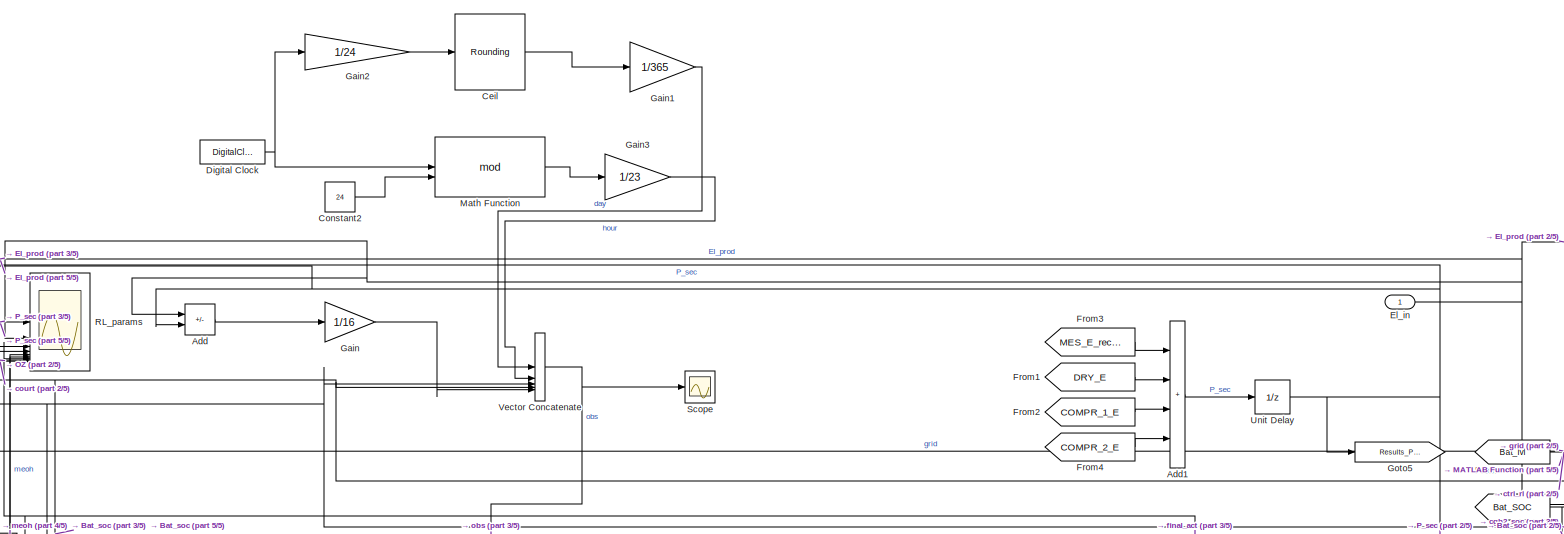
[diagram: ctrl - part 1/5, top center region]
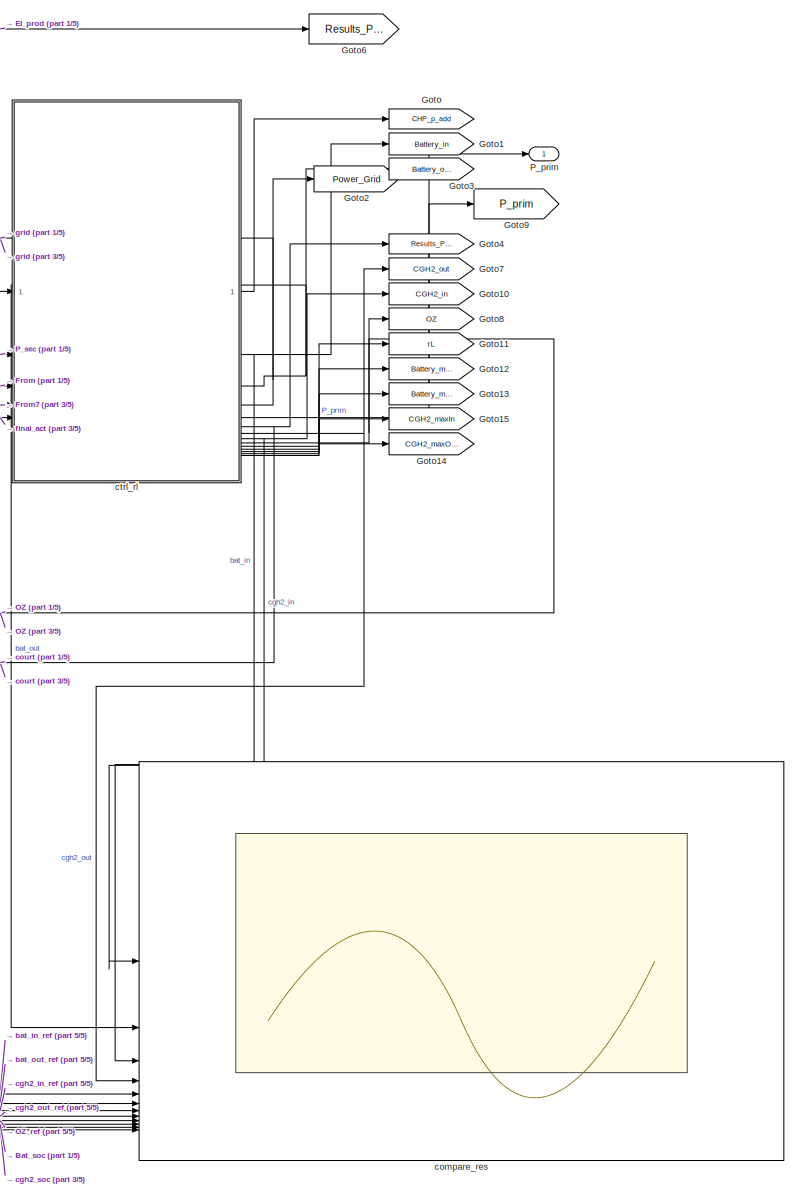
[diagram: ctrl - part 2/5, right side, full height]
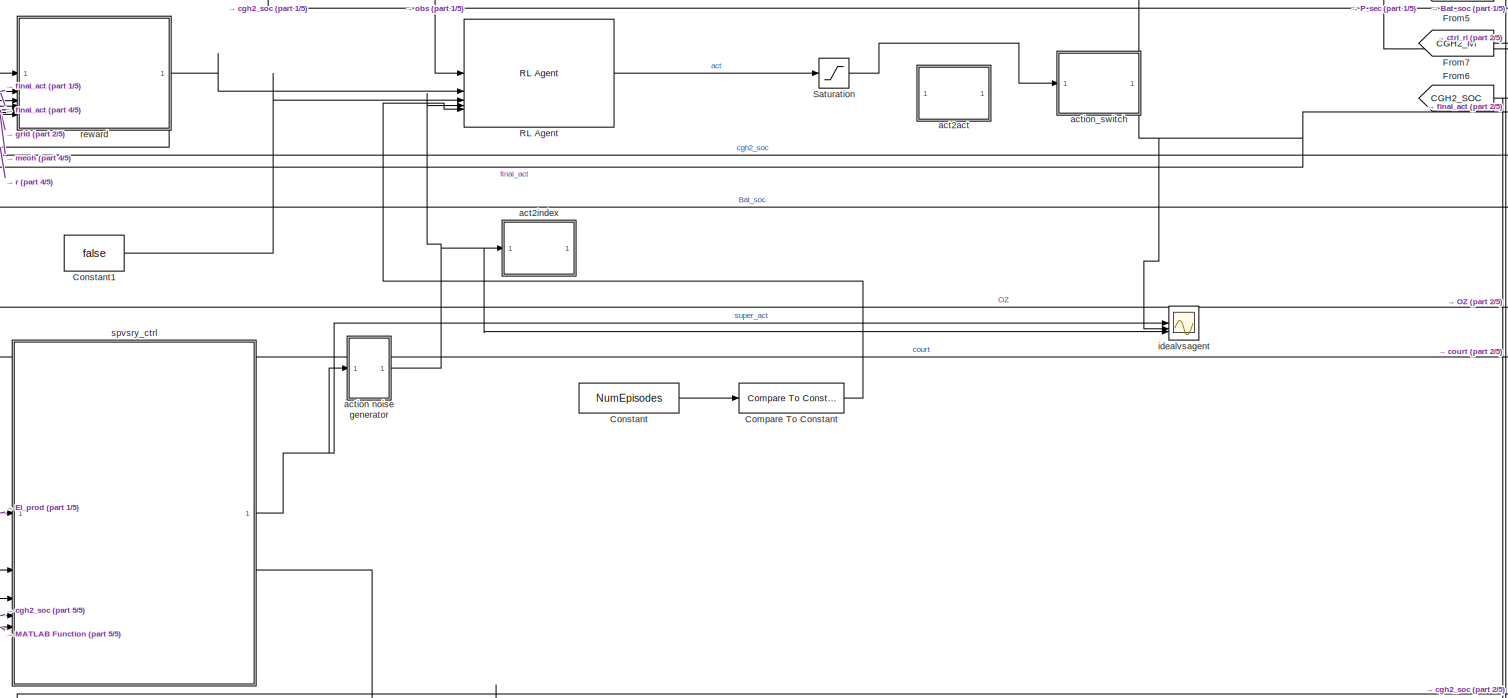
[diagram: ctrl - part 3/5, central region]
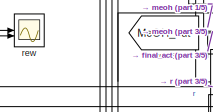
[diagram: ctrl - part 4/5, middle left region]
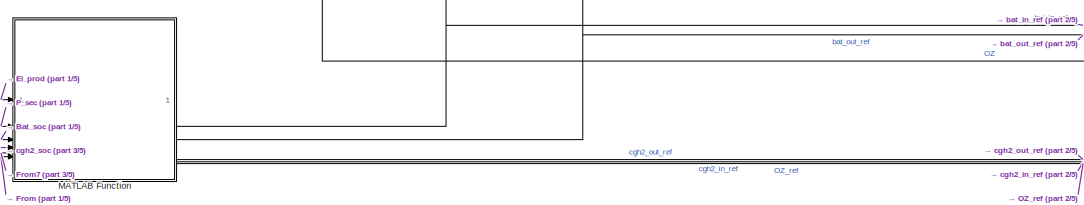
[diagram: ctrl - part 5/5, bottom left region]
BLOCK [SubSystem] ctrl
  PortSchema = {"entries":[{"content":{"sides":[{"content":{},"type":"ConnectorPlacement.EquallySpacedRectSide","uuid":"29211eeb-3776-4ac1-8b6e-260e730243bf"},{"content":{"side":"RIGHT"},"type":"ConnectorPlacement.EquallySpacedRectSide","uuid":"53fb8f12-056e-46ec-aa17-61752852cd78"},{"content":{"connectorIds":["In1"],"side":"TOP"},"type":"ConnectorPlacement.EquallySpacedRectSide","uuid":"01e66cb5-7d7a-44e4-93db-...<+349ch>
BLOCK [Sum] ctrl/Add
  IconShape = rectangular
  Inputs = +-
BLOCK [Sum] ctrl/Add1
  IconShape = rectangular
  Inputs = ++++
BLOCK [Rounding] ctrl/Ceil
  Operator = ceil
BLOCK [Reference] ctrl/Compare To Constant  REF=simulink/Logic and Bit
Operations/Compare
To Constant
  SourceBlock = simulink/Logic and Bit\nOperations/Compare\nTo Constant
  SourceType = Compare To Constant
BLOCK [Constant] ctrl/Constant
  Value = NumEpisodes
BLOCK [Constant] ctrl/Constant1
  Value = false
BLOCK [Constant] ctrl/Constant2
  Value = 24
BLOCK [DigitalClock] ctrl/Digital Clock
BLOCK [Inport] ctrl/El_in
BLOCK [From] ctrl/From
  GotoTag = Bat_lvl
  TagVisibility = global
BLOCK [From] ctrl/From1
  GotoTag = DRY_E
  TagVisibility = global
BLOCK [From] ctrl/From2
  GotoTag = COMPR_1_E
  TagVisibility = global
BLOCK [From] ctrl/From3
  GotoTag = MES_E_recirc
  TagVisibility = global
BLOCK [From] ctrl/From4
  GotoTag = COMPR_2_E
  TagVisibility = global
BLOCK [From] ctrl/From5
  GotoTag = Bat_SOC
  TagVisibility = global
BLOCK [From] ctrl/From6
  GotoTag = CGH2_SOC
  TagVisibility = global
BLOCK [From] ctrl/From7
  GotoTag = CGH2_lvl
  TagVisibility = global
BLOCK [From] ctrl/From8
  GotoTag = MeOH_out
  TagVisibility = global
BLOCK [Gain] ctrl/Gain
  Gain = 1/16
BLOCK [Gain] ctrl/Gain1
  Gain = 1/365
BLOCK [Gain] ctrl/Gain2
  Gain = 1/24
BLOCK [Gain] ctrl/Gain3
  Gain = 1/23
BLOCK [Goto] ctrl/Goto
  GotoTag = CHP_p_add
  TagVisibility = global
BLOCK [Goto] ctrl/Goto1
  GotoTag = Battery_in
  TagVisibility = global
BLOCK [Goto] ctrl/Goto10
  GotoTag = CGH2_in
  TagVisibility = global
BLOCK [Goto] ctrl/Goto11
  GotoTag = rL
  TagVisibility = global
BLOCK [Goto] ctrl/Goto12
  GotoTag = Battery_maxIn
  TagVisibility = global
BLOCK [Goto] ctrl/Goto13
  GotoTag = Battery_maxOut
  TagVisibility = global
BLOCK [Goto] ctrl/Goto14
  GotoTag = CGH2_maxOut
  TagVisibility = global
BLOCK [Goto] ctrl/Goto15
  GotoTag = CGH2_maxIn
  TagVisibility = global
BLOCK [Goto] ctrl/Goto2
  GotoTag = Power_Grid
  TagVisibility = global
BLOCK [Goto] ctrl/Goto3
  GotoTag = Battery_out
  TagVisibility = global
BLOCK [Goto] ctrl/Goto4
  GotoTag = Results_P_curt
  TagVisibility = global
BLOCK [Goto] ctrl/Goto5
  GotoTag = Results_P_sec
  TagVisibility = global
BLOCK [Goto] ctrl/Goto6
  GotoTag = Results_P_prod
  TagVisibility = global
BLOCK [Goto] ctrl/Goto7
  GotoTag = CGH2_out
  TagVisibility = global
BLOCK [Goto] ctrl/Goto8
  GotoTag = OZ
  TagVisibility = global
BLOCK [Goto] ctrl/Goto9
  GotoTag = P_prim
  TagVisibility = global
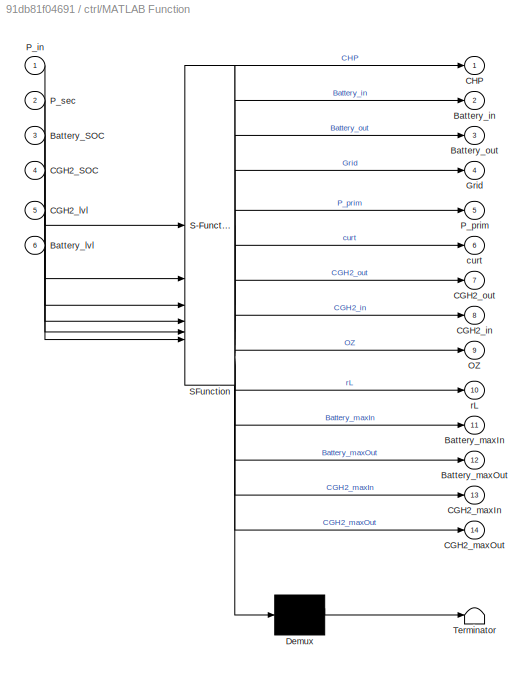
BLOCK [SubSystem] ctrl/MATLAB Function
  ErrorFcn = Stateflow.Translate.translate
  PermitHierarchicalResolution = ExplicitOnly
  SFBlockType = MATLAB Function
  TreatAsAtomicUnit = on
BLOCK [Demux] ctrl/MATLAB Function/ Demux 
  Outputs = 1
BLOCK [S-Function] ctrl/MATLAB Function/ SFunction 
  EnableBusSupport = on
  FunctionName = sf_sfun
  Parameters = AEL,Bttry,CGH2,Ctrl,Gasf
  PortCounts = [6 15]
  SFcnIsStateOwnerBlock = off
  SFunctionDeploymentMode = off
  Tag = Stateflow S-Function 10
BLOCK [Terminator] ctrl/MATLAB Function/ Terminator 
BLOCK [Inport] ctrl/MATLAB Function/Battery_SOC
  Port = 3
BLOCK [Outport] ctrl/MATLAB Function/Battery_in
  Port = 2
BLOCK [Inport] ctrl/MATLAB Function/Battery_lvl
  Port = 6
BLOCK [Outport] ctrl/MATLAB Function/Battery_maxIn
  Port = 11
BLOCK [Outport] ctrl/MATLAB Function/Battery_maxOut
  Port = 12
BLOCK [Outport] ctrl/MATLAB Function/Battery_out
  Port = 3
BLOCK [Inport] ctrl/MATLAB Function/CGH2_SOC
  Port = 4
BLOCK [Outport] ctrl/MATLAB Function/CGH2_in
  Port = 8
BLOCK [Inport] ctrl/MATLAB Function/CGH2_lvl
  Port = 5
BLOCK [Outport] ctrl/MATLAB Function/CGH2_maxIn
  Port = 13
BLOCK [Outport] ctrl/MATLAB Function/CGH2_maxOut
  Port = 14
BLOCK [Outport] ctrl/MATLAB Function/CGH2_out
  Port = 7
BLOCK [Outport] ctrl/MATLAB Function/CHP
BLOCK [Outport] ctrl/MATLAB Function/Grid
  Port = 4
BLOCK [Outport] ctrl/MATLAB Function/OZ
  Port = 9
BLOCK [Inport] ctrl/MATLAB Function/P_in
BLOCK [Outport] ctrl/MATLAB Function/P_prim
  Port = 5
BLOCK [Inport] ctrl/MATLAB Function/P_sec
  Port = 2
BLOCK [Outport] ctrl/MATLAB Function/curt
  Port = 6
BLOCK [Outport] ctrl/MATLAB Function/rL
  Port = 10
BLOCK [Math] ctrl/Math Function
  Operator = mod
BLOCK [Outport] ctrl/P_prim
BLOCK [Reference] ctrl/RL Agent  REF=rllib/RL Agent
  SourceBlock = rllib/RL Agent
  SourceType = RL Agent
BLOCK [Scope] ctrl/RL_params
  Floating = off
  NumInputPorts = 9
  ScopeSpecificationString = Simulink.scopes.TimeScopeBlockCfg('CurrentConfiguration', extmgr.ConfigurationSet(extmgr.Configuration('Core','General UI',true),extmgr.Configuration('Core','Source UI',true),extmgr.Configuration('Sources','WiredSimulink',true),extmgr.Configuration('Visuals','Time Domain',true,'SerializedDisplays',{struct('MinYLimReal','0.33929','MaxYLimReal','0.52078','YLabelReal','','MinYLimMag','0.33929','MaxYL...<+10113ch>
BLOCK [Saturate] ctrl/Saturation
  LowerLimit = lowerLim
  UpperLimit = upperLim
BLOCK [Scope] ctrl/Scope
  Floating = off
  NumInputPorts = 1
  ScopeSpecificationString = Simulink.scopes.TimeScopeBlockCfg('CurrentConfiguration', extmgr.ConfigurationSet(extmgr.Configuration('Core','General UI',true),extmgr.Configuration('Core','Source UI',true),extmgr.Configuration('Sources','WiredSimulink',true,'DataLoggingVariableName','ScopeData1'),extmgr.Configuration('Visuals','Time Domain',true,'SerializedDisplays',{struct('MinYLimReal','-0.125','MaxYLimReal','1.125','YLabelRe...<+1528ch>
BLOCK [UnitDelay] ctrl/Unit Delay
  HasFrameUpgradeWarning = on
  SampleTime = -1
BLOCK [Concatenate] ctrl/Vector Concatenate
  NumInputs = 5
BLOCK [SubSystem] ctrl/act2act
  Commented = on
  ErrorFcn = Stateflow.Translate.translate
  PermitHierarchicalResolution = ExplicitOnly
  SFBlockType = MATLAB Function
  TreatAsAtomicUnit = on
BLOCK [Demux] ctrl/act2act/ Demux 
  Outputs = 1
BLOCK [S-Function] ctrl/act2act/ SFunction 
  EnableBusSupport = on
  FunctionName = sf_sfun
  Parameters = allActions,contActSpace
  PortCounts = [1 2]
  SFcnIsStateOwnerBlock = off
  SFunctionDeploymentMode = off
  Tag = Stateflow S-Function 8
BLOCK [Terminator] ctrl/act2act/ Terminator 
BLOCK [Inport] ctrl/act2act/act
BLOCK [Outport] ctrl/act2act/actOut
BLOCK [SubSystem] ctrl/act2index
  Commented = on
  ErrorFcn = Stateflow.Translate.translate
  PermitHierarchicalResolution = ExplicitOnly
  SFBlockType = MATLAB Function
  TreatAsAtomicUnit = on
BLOCK [Demux] ctrl/act2index/ Demux 
  Outputs = 1
BLOCK [S-Function] ctrl/act2index/ SFunction 
  EnableBusSupport = on
  FunctionName = sf_sfun
  Parameters = acc,allActions,contActSpace
  PortCounts = [1 2]
  SFcnIsStateOwnerBlock = off
  SFunctionDeploymentMode = off
  Tag = Stateflow S-Function 9
BLOCK [Terminator] ctrl/act2index/ Terminator 
BLOCK [Inport] ctrl/act2index/action
BLOCK [Outport] ctrl/act2index/index
BLOCK [SubSystem] ctrl/action noise generator
BLOCK [Sum] ctrl/action noise generator/Add
  IconShape = rectangular
BLOCK [Outport] ctrl/action noise generator/Out1
BLOCK [RandomNumber] ctrl/action noise generator/Random Number
  SampleTime = 1
  Seed = [NumEpisodes NumEpisodes+numtraineps]
  Variance = imit_action_noise_variance
BLOCK [Saturate] ctrl/action noise generator/Saturation
  LowerLimit = -1
  UpperLimit = 1
BLOCK [Inport] ctrl/action noise generator/action
BLOCK [SubSystem] ctrl/action_switch
BLOCK [Constant] ctrl/action_switch/Constant8
  SampleTime = 1
  Value = vanilla
BLOCK [MultiPortSwitch] ctrl/action_switch/Multiport Switch
  DataPortIndices = {0,1,2,3}
  DataPortOrder = Specify indices
  InputSameDT = off
  SaturateOnIntegerOverflow = off
BLOCK [SwitchCase] ctrl/action_switch/Switch Case
  CaseConditions = {0,1,2,3}
  ShowDefaultCase = off
BLOCK [SubSystem] ctrl/action_switch/Switch Case Action Subsystem
  TreatAsAtomicUnit = on
BLOCK [ActionPort] ctrl/action_switch/Switch Case Action Subsystem/Action Port
  ActionPortLabel = case [ 0 ]:
BLOCK [Inport] ctrl/action_switch/Switch Case Action Subsystem/In1
BLOCK [Outport] ctrl/action_switch/Switch Case Action Subsystem/action
BLOCK [SubSystem] ctrl/action_switch/Switch Case Action Subsystem1
  TreatAsAtomicUnit = on
BLOCK [ActionPort] ctrl/action_switch/Switch Case Action Subsystem1/Action Port
  ActionPortLabel = case [ 1 ]:
BLOCK [Constant] ctrl/action_switch/Switch Case Action Subsystem1/Constant
  Value = [-1 -1]
BLOCK [Outport] ctrl/action_switch/Switch Case Action Subsystem1/Out1
BLOCK [SubSystem] ctrl/action_switch/Switch Case Action Subsystem2
  TreatAsAtomicUnit = on
BLOCK [ActionPort] ctrl/action_switch/Switch Case Action Subsystem2/Action Port
  ActionPortLabel = case [ 2 ]:
BLOCK [Outport] ctrl/action_switch/Switch Case Action Subsystem2/Out1
BLOCK [UniformRandomNumber] ctrl/action_switch/Switch Case Action Subsystem2/Uniform Random Number
  Maximum = [1 1]
  Minimum = [-1 -1]
  SampleTime = 1
  Seed = [0 1]
BLOCK [SubSystem] ctrl/action_switch/Switch Case Action Subsystem3
  TreatAsAtomicUnit = on
BLOCK [ActionPort] ctrl/action_switch/Switch Case Action Subsystem3/Action Port
  ActionPortLabel = case [ 3 ]:
BLOCK [Constant] ctrl/action_switch/Switch Case Action Subsystem3/Constant
  Value = [0,0]
BLOCK [Outport] ctrl/action_switch/Switch Case Action Subsystem3/Out1
BLOCK [Outport] ctrl/action_switch/action
BLOCK [Inport] ctrl/action_switch/action_rl
BLOCK [Scope] ctrl/compare_res
  Floating = off
  NumInputPorts = 12
  ScopeSpecificationString = Simulink.scopes.TimeScopeBlockCfg('CurrentConfiguration', extmgr.ConfigurationSet(extmgr.Configuration('Core','General UI',true),extmgr.Configuration('Core','Source UI',true),extmgr.Configuration('Sources','WiredSimulink',true,'DataLoggingVariableName','ScopeData1'),extmgr.Configuration('Visuals','Time Domain',true,'SerializedDisplays',{struct('MinYLimReal','-0.13875','MaxYLimReal','1.24877','YLab...<+10080ch>
BLOCK [SubSystem] ctrl/ctrl_rl
  ErrorFcn = Stateflow.Translate.translate
  PermitHierarchicalResolution = ExplicitOnly
  SFBlockType = MATLAB Function
  TreatAsAtomicUnit = on
BLOCK [Demux] ctrl/ctrl_rl/ Demux 
  Outputs = 1
BLOCK [S-Function] ctrl/ctrl_rl/ SFunction 
  EnableBusSupport = on
  FunctionName = sf_sfun
  Parameters = AEL,Bttry,CGH2,Ctrl,Gasf
  PortCounts = [5 15]
  SFcnIsStateOwnerBlock = off
  SFunctionDeploymentMode = off
  Tag = Stateflow S-Function 3
BLOCK [Terminator] ctrl/ctrl_rl/ Terminator 
BLOCK [Outport] ctrl/ctrl_rl/Battery_in
  Port = 2
BLOCK [Inport] ctrl/ctrl_rl/Battery_lvl
  Port = 3
BLOCK [Outport] ctrl/ctrl_rl/Battery_maxIn
  Port = 11
BLOCK [Outport] ctrl/ctrl_rl/Battery_maxOut
  Port = 12
BLOCK [Outport] ctrl/ctrl_rl/Battery_out
  Port = 3
BLOCK [Outport] ctrl/ctrl_rl/CGH2_in
  Port = 8
BLOCK [Inport] ctrl/ctrl_rl/CGH2_lvl
  Port = 4
BLOCK [Outport] ctrl/ctrl_rl/CGH2_maxIn
  Port = 13
BLOCK [Outport] ctrl/ctrl_rl/CGH2_maxOut
  Port = 14
BLOCK [Outport] ctrl/ctrl_rl/CGH2_out
  Port = 7
BLOCK [Outport] ctrl/ctrl_rl/CHP
BLOCK [Outport] ctrl/ctrl_rl/Grid
  Port = 4
BLOCK [Outport] ctrl/ctrl_rl/OZ
  Port = 9
BLOCK [Inport] ctrl/ctrl_rl/P_in
BLOCK [Outport] ctrl/ctrl_rl/P_prim
  Port = 5
BLOCK [Inport] ctrl/ctrl_rl/P_sec
  Port = 2
BLOCK [Inport] ctrl/ctrl_rl/action
  Port = 5
BLOCK [Outport] ctrl/ctrl_rl/curt
  Port = 6
BLOCK [Outport] ctrl/ctrl_rl/rL
  Port = 10
BLOCK [Scope] ctrl/idealvsagent
  Floating = off
  NumInputPorts = 3
  ScopeSpecificationString = Simulink.scopes.TimeScopeBlockCfg('CurrentConfiguration', extmgr.ConfigurationSet(extmgr.Configuration('Core','General UI',true),extmgr.Configuration('Core','Source UI',true),extmgr.Configuration('Sources','WiredSimulink',true,'DataLoggingVariableName','ScopeData1'),extmgr.Configuration('Visuals','Time Domain',true,'SerializedDisplays',{struct('MinYLimReal','-0.42737','MaxYLimReal','0.09634','YLab...<+3177ch>
BLOCK [Scope] ctrl/rew
  Floating = off
  NumInputPorts = 2
  ScopeSpecificationString = Simulink.scopes.TimeScopeBlockCfg('CurrentConfiguration', extmgr.ConfigurationSet(extmgr.Configuration('Core','General UI',true),extmgr.Configuration('Core','Source UI',true),extmgr.Configuration('Sources','WiredSimulink',true,'DataLoggingVariableName','ScopeData1'),extmgr.Configuration('Visuals','Time Domain',true,'SerializedDisplays',{struct('MinYLimReal','-0.53551','MaxYLimReal','0.57503','YLab...<+3044ch>
BLOCK [SubSystem] ctrl/reward
  ErrorFcn = Stateflow.Translate.translate
  PermitHierarchicalResolution = ExplicitOnly
  SFBlockType = MATLAB Function
  TreatAsAtomicUnit = on
BLOCK [Demux] ctrl/reward/ Demux 
  Outputs = 1
BLOCK [S-Function] ctrl/reward/ SFunction 
  EnableBusSupport = on
  FunctionName = sf_sfun
  PortCounts = [7 2]
  SFcnIsStateOwnerBlock = off
  SFunctionDeploymentMode = off
  Tag = Stateflow S-Function 4
BLOCK [Terminator] ctrl/reward/ Terminator 
BLOCK [Inport] ctrl/reward/Battery_SOC
  Port = 3
BLOCK [Inport] ctrl/reward/CGH2_SOC
  Port = 4
BLOCK [Inport] ctrl/reward/OZ
BLOCK [Inport] ctrl/reward/action
  Port = 2
BLOCK [Inport] ctrl/reward/court
  Port = 6
BLOCK [Inport] ctrl/reward/grid
  Port = 5
BLOCK [Inport] ctrl/reward/meoh
  Port = 7
BLOCK [Outport] ctrl/reward/r
BLOCK [SubSystem] ctrl/spvsry_ctrl
  ErrorFcn = Stateflow.Translate.translate
  PermitHierarchicalResolution = ExplicitOnly
  SFBlockType = MATLAB Function
  TreatAsAtomicUnit = on
BLOCK [Demux] ctrl/spvsry_ctrl/ Demux 
  Outputs = 1
BLOCK [S-Function] ctrl/spvsry_ctrl/ SFunction 
  EnableBusSupport = on
  FunctionName = sf_sfun
  Parameters = AEL,CGH2,Ctrl,Gasf
  PortCounts = [5 3]
  SFcnIsStateOwnerBlock = off
  SFunctionDeploymentMode = off
  Tag = Stateflow S-Function 6
BLOCK [Terminator] ctrl/spvsry_ctrl/ Terminator 
BLOCK [Inport] ctrl/spvsry_ctrl/Battery_SOC
  Port = 3
BLOCK [Inport] ctrl/spvsry_ctrl/CGH2_SOC
  Port = 4
BLOCK [Inport] ctrl/spvsry_ctrl/CGH2_lvl
  Port = 5
BLOCK [Outport] ctrl/spvsry_ctrl/OZ
  Port = 2
BLOCK [Inport] ctrl/spvsry_ctrl/P_in
BLOCK [Inport] ctrl/spvsry_ctrl/P_sec
  Port = 2
BLOCK [Outport] ctrl/spvsry_ctrl/action
NET ATR/Add1:1 -> ATR/Add:1, ATR/Product:1
NET ATR/Add:1 -> ATR/Goto2:1, ATR/SG:1, ATR/Subsystem Reference1:11
LINE ATR/Constant1:1 -> ATR/Product1:1
LINE ATR/Constant2:1 -> ATR/Product:2
NET ATR/Product1:1 -> ATR/Add1:1, ATR/Goto:1, ATR/Subsystem Reference1:4
NET ATR/Product:1 -> ATR/Add:2, ATR/Subsystem Reference1:12, ATR/Water:1
NET ATR/Raw SG:1 -> ATR/Add1:2, ATR/Product1:2, ATR/Subsystem Reference1:10
LINE ATR/Subsystem Reference1:1 -> ATR/To Workspace2:1
LINE ATR:1 -> COMPR1:1
LINE Add1:1 -> EL:1
LINE Add2:1 -> ctrl:1
LINE Add:1 -> SG DISTR1:2
NET BATTERY/Add1:1 -> BATTERY/Divide:1, BATTERY/Goto1:1
NET BATTERY/Add:1 -> BATTERY/Discrete-Time Integrator1:1, BATTERY/Goto2:1
LINE BATTERY/Constant1:1 -> BATTERY/Product1:1
NET BATTERY/Constant:1 -> BATTERY/Divide:2, BATTERY/Product1:2
LINE BATTERY/Discrete-Time Integrator:1 -> BATTERY/Add1:1
NET BATTERY/Divide1:1 -> BATTERY/Minus2:1, BATTERY/Minus:2
LINE BATTERY/Divide:1 -> BATTERY/Goto:1
NET BATTERY/Eff1:1 -> BATTERY/Divide1:1, BATTERY/Product:2
NET BATTERY/From1:1 -> BATTERY/Divide1:2, BATTERY/Minus2:2, BATTERY/OUT:1
NET BATTERY/From:1 -> BATTERY/IN:1, BATTERY/Minus1:1, BATTERY/Product:1
LINE BATTERY/Minus1:1 -> BATTERY/Add:2
LINE BATTERY/Minus2:1 -> BATTERY/Add:1
NET BATTERY/Minus:1 -> BATTERY/Discrete-Time Integrator:1, BATTERY/Subsystem Reference1:1
LINE BATTERY/Product1:1 -> BATTERY/Add1:2
NET BATTERY/Product:1 -> BATTERY/Minus1:2, BATTERY/Minus:1
LINE BATTERY/Subsystem Reference1:1 -> BATTERY/To Workspace1:1
LINE BATTERY:1 -> Add1:2
LINE BATTERY:2 -> Add1:3
LINE BM /Constant1:1 -> BM /Ideal Controller:1
NET BM /From2:1 -> BM /Ideal Controller:3, BM /MATLAB Function:1
LINE BM /From3:1 -> BM /MATLAB Function:2
LINE BM /From:1 -> BM /Ideal Controller:2
LINE BM /IC:1 -> BM /Goto:1
NET BM /Ideal Controller:1 -> BM /Goto1:1, BM /Subsystem Reference1:5, BM /out:1
LINE BM /MATLAB Function:1 -> BM /IC:1
LINE BM /Subsystem Reference1:1 -> BM /To Workspace1:1
LINE BM :1 -> DRYER:1
NET CGH2/Add2:1 -> CGH2/Goto:1, CGH2/Product:1
NET CGH2/Add:1 -> CGH2/Gain:1, CGH2/Subsystem Reference2:6
LINE CGH2/Constant1:1 -> CGH2/Product1:1
NET CGH2/Constant:1 -> CGH2/Product1:2, CGH2/Product:2
LINE CGH2/Discrete-Time Integrator:1 -> CGH2/Add2:1
NET CGH2/From1:1 -> CGH2/Add:1, CGH2/In:1
NET CGH2/From:1 -> CGH2/Add:2, CGH2/Out:1
LINE CGH2/Gain:1 -> CGH2/Discrete-Time Integrator:1
LINE CGH2/Product1:1 -> CGH2/Add2:2
LINE CGH2/Product:1 -> CGH2/Goto1:1
LINE CGH2/Subsystem Reference2:1 -> CGH2/To Workspace:1
LINE CGH2:1 -> Add:2
LINE CGH2:2 -> Minus:1
NET CGO2/Add:1 -> CGO2/Divide:1, CGO2/Goto2:1
LINE CGO2/Constant1:1 -> CGO2/Divide:2
LINE CGO2/Constant2:1 -> CGO2/Add:2
LINE CGO2/Discrete-Time Integrator:1 -> CGO2/Add:1
LINE CGO2/Divide:1 -> CGO2/Goto1:1
LINE CGO2/Gain2:1 -> CGO2/Discrete-Time Integrator:1
NET CGO2/Minus1:1 -> CGO2/Gain2:1, CGO2/Subsystem Reference2:4
LINE CGO2/Subsystem Reference2:1 -> CGO2/To Workspace:1
LINE CGO2/in:1 -> CGO2/Minus1:1
LINE CGO2/out:1 -> CGO2/Minus1:2
LINE CHP/Add:1 -> CHP/Goto1:1
LINE CHP/Constant1:1 -> CHP/Divide:3
LINE CHP/Constant2:1 -> CHP/Divide:2
LINE CHP/Constant3:1 -> CHP/Product:2
LINE CHP/Constant4:1 -> CHP/Product:3
LINE CHP/Divide:1 -> CHP/Goto:1
NET CHP/From:1 -> CHP/Add:1, CHP/Divide:1, CHP/Elec from req:1
NET CHP/Product:1 -> CHP/Add:2, CHP/Elec Base:1, CHP/Goto2:1
LINE CHP/Purge:1 -> CHP/Product:1
LINE CHP/SG:1 -> CHP/Subsystem Reference1:10
LINE CHP/Subsystem Reference1:1 -> CHP/To Workspace1:1
LINE CHP:1 -> Add1:5
LINE CHP:2 -> Unit Delay:1
LINE COMPR1/Constant:1 -> COMPR1/Product:1
NET COMPR1/Input:1 -> COMPR1/Output:1, COMPR1/Product:2
NET COMPR1/Product:1 -> COMPR1/Goto:1, COMPR1/Subsystem Reference1:1
LINE COMPR1/Subsystem Reference1:1 -> COMPR1/To Workspace2:1
LINE COMPR1:1 -> SG DISTR1:1
LINE COMPR2/Constant:1 -> COMPR2/Product:1
NET COMPR2/Input:1 -> COMPR2/Output:1, COMPR2/Product:2
NET COMPR2/Product:1 -> COMPR2/Goto:1, COMPR2/Subsystem Reference2:1
LINE COMPR2/Subsystem Reference2:1 -> COMPR2/To Workspace2:1
LINE COMPR2:1 -> MS:1
LINE CURT/From:1 -> CURT/Output:1
LINE CURT:1 -> Add1:6
LINE DIST/Constant1:1 -> DIST/Product1:2
LINE DIST/Constant:1 -> DIST/Product:2
NET DIST/Minus:1 -> DIST/Goto2:1, DIST/MeOH:1, DIST/Subsystem Reference2:13
NET DIST/Product1:1 -> DIST/Light Gases:1, DIST/Minus:3
NET DIST/Product:1 -> DIST/Minus:2, DIST/Subsystem Reference2:12, DIST/Water:1
LINE DIST/Subsystem Reference2:1 -> DIST/To Workspace1:1
NET DIST/Zero:1 -> DIST/Goto1:1, DIST/Subsystem Reference2:2
NET DIST/raw:1 -> DIST/Minus:1, DIST/Product1:1, DIST/Product:1, DIST/Subsystem Reference2:7
LINE DIST:3 -> MeOH:1
LINE DRYER/Constant1:1 -> DRYER/Product3:2
LINE DRYER/Constant2:1 -> DRYER/Product:2
NET DRYER/Minus:1 -> DRYER/Goto2:1, DRYER/Product3:1, DRYER/Subsystem Reference2:9, DRYER/dry:1
NET DRYER/Product3:1 -> DRYER/Goto1:1, DRYER/Subsystem Reference2:1
NET DRYER/Product:1 -> DRYER/Minus:2, DRYER/Subsystem Reference2:12, DRYER/Water:1
LINE DRYER/Subsystem Reference2:1 -> DRYER/To Workspace2:1
NET DRYER/wet:1 -> DRYER/Minus:1, DRYER/Product:1, DRYER/Subsystem Reference2:5
LINE DRYER:2 -> GASF:1
NET EL/AEL_P_MW:1 -> EL/Divide2:1, EL/Goto3:1, EL/Minus1:1, EL/Product3:1, EL/Subsystem Reference2:1
LINE EL/AEL_const:1 -> EL/Product1:1
LINE EL/Constant1:1 -> EL/Max:2
LINE EL/Constant2:1 -> EL/Minus2:1
LINE EL/Constant3:1 -> EL/Divide2:2
LINE EL/Constant:1 -> EL/Product3:2
NET EL/Divide1:1 -> EL/H2:1, EL/Max:1, EL/Product2:1, EL/Subsystem Reference2:6
LINE EL/Divide2:1 -> EL/Goto4:1
LINE EL/From:1 -> EL/Minus2:2
LINE EL/HV H1:1 -> EL/Product2:2
LINE EL/HV H2:1 -> EL/Divide1:2
LINE EL/Max:1 -> EL/Goto2:1
LINE EL/Minus1:1 -> EL/Minus3:2
LINE EL/Minus2:1 -> EL/Product1:2
LINE EL/Minus3:1 -> EL/Goto1:1
LINE EL/Product1:1 -> EL/Minus3:1
NET EL/Product2:1 -> EL/AEL_MF_O2:1, EL/Subsystem Reference2:4
NET EL/Product3:1 -> EL/Divide1:1, EL/Minus1:2
LINE EL/Subsystem Reference2:1 -> EL/To Workspace1:1
LINE EL:1 -> Minus:2
LINE EL:2 -> O2 Distribution:1
LINE From10:1 -> RLT:10
LINE From11:1 -> RLT:11
LINE From12:1 -> RLT:12
LINE From13:1 -> RLT:13
LINE From14:1 -> RLT:7
LINE From15:1 -> RLT:15
LINE From16:1 -> RLT:16
LINE From17:1 -> RLT:23
LINE From18:1 -> RLT:25
LINE From19:1 -> RLT:2
LINE From1:1 -> RLT:3
LINE From20:1 -> RLT:26
LINE From21:1 -> RLT:4
LINE From22:1 -> RLT:9
LINE From23:1 -> RLT:8
LINE From24:1 -> RLT:17
LINE From25:1 -> RLT:18
LINE From26:1 -> RLT:20
LINE From27:1 -> RLT:19
LINE From28:1 -> RLT:24
LINE From29:1 -> RLT:28
LINE From2:1 -> RLT:5
LINE From30:1 -> RLT:29
LINE From31:1 -> RLT:32
LINE From32:1 -> RLT:38
LINE From33:1 -> RLT:30
LINE From34:1 -> RLT:35
LINE From35:1 -> RLT:6
LINE From36:1 -> RLT:33
LINE From37:1 -> RLT:31
LINE From38:1 -> RLT:39
LINE From39:1 -> RLT:40
LINE From3:1 -> RLT:27
LINE From40:1 -> RLT:41
LINE From41:1 -> RLT:42
LINE From42:1 -> RLT:43
LINE From43:1 -> RLT:44
LINE From4:1 -> RLT:14
LINE From5:1 -> RLT:37
LINE From6:1 -> RLT:21
LINE From7:1 -> RLT:22
LINE From8:1 -> RLT:36
LINE From9:1 -> RLT:34
LINE From:1 -> RLT:1
NET GASF/Add:1 -> GASF/Divide:1, GASF/Goto2:1, GASF/Raw SG:1, GASF/Subsystem Reference2:10
LINE GASF/Constant1:1 -> GASF/Product1:1
LINE GASF/Constant2:1 -> GASF/Divide:2
LINE GASF/Constant:1 -> GASF/Product:1
LINE GASF/Divide:1 -> GASF/Goto3:1
NET GASF/Dry BM:1 -> GASF/Add:3, GASF/Product1:2, GASF/Product:2, GASF/Subsystem Reference2:9
NET GASF/Product1:1 -> GASF/Add:1, GASF/Goto:1, GASF/Subsystem Reference2:3
NET GASF/Product:1 -> GASF/Add:2, GASF/Goto1:1, GASF/Subsystem Reference2:4
LINE GASF/Subsystem Reference2:1 -> GASF/To Workspace1:1
LINE GASF:1 -> SG DISTR:1
NET GRID/From:1 -> GRID/OUT:1, GRID/Subsystem Reference1:1
LINE GRID/Subsystem Reference1:1 -> GRID/To Workspace:1
LINE GRID:1 -> Add1:4
LINE MS/Constant1:1 -> MS/Product1:2
LINE MS/Constant2:1 -> MS/Product2:1
LINE MS/From1:1 -> MS/Subsystem Reference2:11
LINE MS/From:1 -> MS/Subsystem Reference2:6
LINE MS/Product1:1 -> MS/Purge:1
NET MS/Product2:1 -> MS/Goto2:1, MS/Subsystem Reference2:1
NET MS/SG:1 -> MS/MeOH raw:1, MS/Product1:1, MS/Product2:2, MS/Subsystem Reference2:7
LINE MS/Subsystem Reference2:1 -> MS/To Workspace1:1
LINE MS:1 -> DIST:1
LINE MS:2 -> CHP:2
LINE Minus:1 -> Add:1
NET O2 Distribution/AEL:1 -> O2 Distribution/Gain4:1, O2 Distribution/O2_DISTRIBUTION:2
LINE O2 Distribution/From1:1 -> O2 Distribution/O2_DISTRIBUTION:4
LINE O2 Distribution/From2:1 -> O2 Distribution/O2_DISTRIBUTION:3
NET O2 Distribution/From:1 -> O2 Distribution/Gain3:1, O2 Distribution/O2_DISTRIBUTION:1
LINE O2 Distribution/Gain1:1 -> O2 Distribution/Discrete-Time Integrator:1
LINE O2 Distribution/Gain2:1 -> O2 Distribution/Discrete-Time Integrator1:1
LINE O2 Distribution/Gain3:1 -> O2 Distribution/Discrete-Time Integrator2:1
LINE O2 Distribution/Gain4:1 -> O2 Distribution/Discrete-Time Integrator3:1
NET O2 Distribution/O2_DISTRIBUTION:1 -> O2 Distribution/CGO2_in:1, O2 Distribution/Gain1:1
NET O2 Distribution/O2_DISTRIBUTION:2 -> O2 Distribution/Gain2:1, O2 Distribution/Unit Delay1:1
LINE O2 Distribution/O2_DISTRIBUTION:3 -> O2 Distribution/Unit Delay2:1
LINE O2 Distribution/O2_DISTRIBUTION:4 -> O2 Distribution/Unit Delay3:1
LINE O2 Distribution/Unit Delay1:1 -> O2 Distribution/CGO2_out:1
LINE O2 Distribution/Unit Delay2:1 -> O2 Distribution/SMR:1
LINE O2 Distribution/Unit Delay3:1 -> O2 Distribution/GASF:1
LINE O2 Distribution:3 -> CGO2:1
LINE O2 Distribution:4 -> CGO2:2
LINE RLT:1 -> To Workspace:1
NET SG DISTR/From:1 -> SG DISTR/CHP:1, SG DISTR/Goto1:1, SG DISTR/Minus:2
LINE SG DISTR/Input:1 -> SG DISTR/Minus:1
NET SG DISTR/Minus:1 -> SG DISTR/Goto3:1, SG DISTR/MSR:1
NET SG DISTR1/Add:1 -> SG DISTR1/Goto1:1, SG DISTR1/Output:1
LINE SG DISTR1/BIO:1 -> SG DISTR1/Add:2
NET SG DISTR1/E:1 -> SG DISTR1/Add:1, SG DISTR1/Goto2:1
LINE SG DISTR1:1 -> COMPR2:1
LINE SG DISTR:1 -> CHP:1
LINE SG DISTR:2 -> ATR:1
LINE Unit Delay:1 -> Add2:2
NET WT, PV/Ambient Temperature:1 -> WT, PV/Goto:1, WT, PV/PHOTOVOLTAIC:2
NET WT, PV/Digital Clock:1 -> WT, PV/Ambient Temperature:1, WT, PV/Solar Irradiance:1, WT, PV/Wind Speed:1
NET WT, PV/PHOTOVOLTAIC/Constant1:1 -> WT, PV/PHOTOVOLTAIC/Divide:2, WT, PV/PHOTOVOLTAIC/Switch:2, WT, PV/PHOTOVOLTAIC/Switch:3
LINE WT, PV/PHOTOVOLTAIC/Constant2:1 -> WT, PV/PHOTOVOLTAIC/Product3:3
LINE WT, PV/PHOTOVOLTAIC/Constant3:1 -> WT, PV/PHOTOVOLTAIC/Product3:1
LINE WT, PV/PHOTOVOLTAIC/Divide:1 -> WT, PV/PHOTOVOLTAIC/Switch:1
NET WT, PV/PHOTOVOLTAIC/G_t [W//m^2]:1 -> WT, PV/PHOTOVOLTAIC/Panel Efficiency:1, WT, PV/PHOTOVOLTAIC/Product1:1
LINE WT, PV/PHOTOVOLTAIC/Inverter Efficiency:1 -> WT, PV/PHOTOVOLTAIC/Product2:1
LINE WT, PV/PHOTOVOLTAIC/Panel Efficiency:1 -> WT, PV/PHOTOVOLTAIC/Product1:2
LINE WT, PV/PHOTOVOLTAIC/Product1:1 -> WT, PV/PHOTOVOLTAIC/Product3:2
NET WT, PV/PHOTOVOLTAIC/Product2:1 -> WT, PV/PHOTOVOLTAIC/PV_P_Out_MW:1, WT, PV/PHOTOVOLTAIC/Subsystem Reference1:1
NET WT, PV/PHOTOVOLTAIC/Product3:1 -> WT, PV/PHOTOVOLTAIC/Divide:1, WT, PV/PHOTOVOLTAIC/Product2:2
LINE WT, PV/PHOTOVOLTAIC/Subsystem Reference1:1 -> WT, PV/PHOTOVOLTAIC/To Workspace:1
LINE WT, PV/PHOTOVOLTAIC/Switch:1 -> WT, PV/PHOTOVOLTAIC/Inverter Efficiency:1
LINE WT, PV/PHOTOVOLTAIC/t_amb [°C]:1 -> WT, PV/PHOTOVOLTAIC/Panel Efficiency:2
NET WT, PV/PHOTOVOLTAIC:1 -> WT, PV/Goto1:1, WT, PV/Sum:1
LINE WT, PV/Solar Irradiance:1 -> WT, PV/PHOTOVOLTAIC:1
NET WT, PV/Sum:1 -> WT, PV/Goto3:1, WT, PV/P_renew:1
NET WT, PV/WIND TURBINE/Add:1 -> WT, PV/WIND TURBINE/Subsystem Reference1:1, WT, PV/WIND TURBINE/WT_P_Out [MW]:1
LINE WT, PV/WIND TURBINE/Constant1:1 -> WT, PV/WIND TURBINE/Product1:2
LINE WT, PV/WIND TURBINE/Constant2:1 -> WT, PV/WIND TURBINE/Product2:2
LINE WT, PV/WIND TURBINE/Constant:1 -> WT, PV/WIND TURBINE/Product:1
LINE WT, PV/WIND TURBINE/Product1:1 -> WT, PV/WIND TURBINE/Add:2
NET WT, PV/WIND TURBINE/Product2:1 -> WT, PV/WIND TURBINE/V112 3.45 MW:1, WT, PV/WIND TURBINE/V112 4.2 MW:1
LINE WT, PV/WIND TURBINE/Product:1 -> WT, PV/WIND TURBINE/Add:1
LINE WT, PV/WIND TURBINE/Subsystem Reference1:1 -> WT, PV/WIND TURBINE/To Workspace1:1
LINE WT, PV/WIND TURBINE/V112 3.45 MW:1 -> WT, PV/WIND TURBINE/Product:2
LINE WT, PV/WIND TURBINE/V112 4.2 MW:1 -> WT, PV/WIND TURBINE/Product1:1
LINE WT, PV/WIND TURBINE/v_wind [m//s]:1 -> WT, PV/WIND TURBINE/Product2:1
NET WT, PV/WIND TURBINE:1 -> WT, PV/Goto2:1, WT, PV/Sum:2
LINE WT, PV/Wind Speed:1 -> WT, PV/WIND TURBINE:1
LINE WT, PV:1 -> Add2:1
LINE ctrl/Add1:1 -> ctrl/Unit Delay:1
LINE ctrl/Add:1 -> ctrl/Gain:1
LINE ctrl/Ceil:1 -> ctrl/Gain1:1
LINE ctrl/Compare To Constant:1 -> ctrl/RL Agent:5
LINE ctrl/Constant1:1 -> ctrl/RL Agent:3
LINE ctrl/Constant2:1 -> ctrl/Math Function:2
LINE ctrl/Constant:1 -> ctrl/Compare To Constant:1
NET ctrl/Digital Clock:1 -> ctrl/Gain2:1, ctrl/Math Function:1
NET ctrl/El_in:1 -> ctrl/Add:1, ctrl/Goto6:1, ctrl/MATLAB Function:1, ctrl/RL_params:2, ctrl/ctrl_rl:1, ctrl/spvsry_ctrl:1
LINE ctrl/From1:1 -> ctrl/Add1:2
LINE ctrl/From2:1 -> ctrl/Add1:3
LINE ctrl/From3:1 -> ctrl/Add1:1
LINE ctrl/From4:1 -> ctrl/Add1:4
NET ctrl/From5:1 -> ctrl/MATLAB Function:3, ctrl/RL_params:3, ctrl/Vector Concatenate:4, ctrl/compare_res:10, ctrl/reward:3, ctrl/spvsry_ctrl:3
NET ctrl/From6:1 -> ctrl/MATLAB Function:4, ctrl/RL_params:4, ctrl/Vector Concatenate:3, ctrl/compare_res:11, ctrl/reward:4, ctrl/spvsry_ctrl:4
NET ctrl/From7:1 -> ctrl/MATLAB Function:5, ctrl/ctrl_rl:4, ctrl/spvsry_ctrl:5
NET ctrl/From8:1 -> ctrl/RL_params:5, ctrl/reward:7
NET ctrl/From:1 -> ctrl/MATLAB Function:6, ctrl/ctrl_rl:3
LINE ctrl/Gain1:1 -> ctrl/Vector Concatenate:1
LINE ctrl/Gain2:1 -> ctrl/Ceil:1
LINE ctrl/Gain3:1 -> ctrl/Vector Concatenate:2
LINE ctrl/Gain:1 -> ctrl/Vector Concatenate:5
LINE ctrl/MATLAB Function:2 -> ctrl/compare_res:5
LINE ctrl/MATLAB Function:3 -> ctrl/compare_res:6
LINE ctrl/MATLAB Function:7 -> ctrl/compare_res:8
LINE ctrl/MATLAB Function:8 -> ctrl/compare_res:7
LINE ctrl/MATLAB Function:9 -> ctrl/compare_res:9
LINE ctrl/Math Function:1 -> ctrl/Gain3:1
LINE ctrl/RL Agent:1 -> ctrl/Saturation:1
LINE ctrl/Saturation:1 -> ctrl/action_switch:1
NET ctrl/Unit Delay:1 -> ctrl/Add:2, ctrl/Goto5:1, ctrl/MATLAB Function:2, ctrl/RL_params:1, ctrl/ctrl_rl:2, ctrl/spvsry_ctrl:2
NET ctrl/Vector Concatenate:1 -> ctrl/RL Agent:1, ctrl/Scope:1
LINE ctrl/action noise generator/Add:1 -> ctrl/action noise generator/Saturation:1
LINE ctrl/action noise generator/Random Number:1 -> ctrl/action noise generator/Add:2
LINE ctrl/action noise generator/Saturation:1 -> ctrl/action noise generator/Out1:1
LINE ctrl/action noise generator/action:1 -> ctrl/action noise generator/Add:1
NET ctrl/action noise generator:1 -> ctrl/RL Agent:4, ctrl/act2index:1, ctrl/idealvsagent:3
NET ctrl/action_switch/Constant8:1 -> ctrl/action_switch/Multiport Switch:1, ctrl/action_switch/Switch Case:1
LINE ctrl/action_switch/Multiport Switch:1 -> ctrl/action_switch/action:1
LINE ctrl/action_switch/Switch Case Action Subsystem/In1:1 -> ctrl/action_switch/Switch Case Action Subsystem/action:1
LINE ctrl/action_switch/Switch Case Action Subsystem1/Constant:1 -> ctrl/action_switch/Switch Case Action Subsystem1/Out1:1
LINE ctrl/action_switch/Switch Case Action Subsystem1:1 -> ctrl/action_switch/Multiport Switch:3
LINE ctrl/action_switch/Switch Case Action Subsystem2/Uniform Random Number:1 -> ctrl/action_switch/Switch Case Action Subsystem2/Out1:1
LINE ctrl/action_switch/Switch Case Action Subsystem2:1 -> ctrl/action_switch/Multiport Switch:4
LINE ctrl/action_switch/Switch Case Action Subsystem3/Constant:1 -> ctrl/action_switch/Switch Case Action Subsystem3/Out1:1
LINE ctrl/action_switch/Switch Case Action Subsystem3:1 -> ctrl/action_switch/Multiport Switch:5
LINE ctrl/action_switch/Switch Case Action Subsystem:1 -> ctrl/action_switch/Multiport Switch:2
LINE ctrl/action_switch/Switch Case:1 -> ctrl/action_switch/Switch Case Action Subsystem:ifaction
LINE ctrl/action_switch/Switch Case:2 -> ctrl/action_switch/Switch Case Action Subsystem1:ifaction
LINE ctrl/action_switch/Switch Case:3 -> ctrl/action_switch/Switch Case Action Subsystem2:ifaction
LINE ctrl/action_switch/Switch Case:4 -> ctrl/action_switch/Switch Case Action Subsystem3:ifaction
LINE ctrl/action_switch/action_rl:1 -> ctrl/action_switch/Switch Case Action Subsystem:1
NET ctrl/action_switch:1 -> ctrl/RL_params:7, ctrl/ctrl_rl:5, ctrl/idealvsagent:2, ctrl/rew:2, ctrl/reward:2
LINE ctrl/ctrl_rl:1 -> ctrl/Goto:1
LINE ctrl/ctrl_rl:10 -> ctrl/Goto11:1
LINE ctrl/ctrl_rl:11 -> ctrl/Goto12:1
LINE ctrl/ctrl_rl:12 -> ctrl/Goto13:1
LINE ctrl/ctrl_rl:13 -> ctrl/Goto15:1
LINE ctrl/ctrl_rl:14 -> ctrl/Goto14:1
NET ctrl/ctrl_rl:2 -> ctrl/Goto1:1, ctrl/compare_res:1
NET ctrl/ctrl_rl:3 -> ctrl/Goto3:1, ctrl/compare_res:2
NET ctrl/ctrl_rl:4 -> ctrl/Goto2:1, ctrl/RL_params:6, ctrl/reward:5
NET ctrl/ctrl_rl:5 -> ctrl/Goto9:1, ctrl/P_prim:1
NET ctrl/ctrl_rl:6 -> ctrl/Goto4:1, ctrl/RL_params:9, ctrl/reward:6
NET ctrl/ctrl_rl:7 -> ctrl/Goto7:1, ctrl/compare_res:4
NET ctrl/ctrl_rl:8 -> ctrl/Goto10:1, ctrl/compare_res:3
NET ctrl/ctrl_rl:9 -> ctrl/Goto8:1, ctrl/RL_params:8, ctrl/reward:1
NET ctrl/reward:1 -> ctrl/RL Agent:2, ctrl/rew:1
NET ctrl/spvsry_ctrl:1 -> ctrl/action noise generator:1, ctrl/idealvsagent:1
LINE ctrl/spvsry_ctrl:2 -> ctrl/compare_res:12
LINE ctrl:1 -> Add1:1
note: NET lines group one-source signal fan-out (src -> all destinations, sorted); 1:1 wires keep LINE
CHART ctrl/reward states=1 transitions=1
  STATE_LABEL 'eML_blk_kernel()'
  STATE_LABEL 'SCRIPT:\nfunction r = rewardfcn(OZ, action, Battery_SOC, CGH2_SOC, grid, court, meoh)\nif court || grid\n    r = -grid/20 -court/20;\nelse\n    r = meoh;\nend\n\n\n% sigma = 0.1;\n% act_bat = action(2);\n% act_cgh = action(1);\n% mu1 = 0;\n% mu2 = 0;\n%     % r1 = 0.5 * sqrt(2*pi) * sigma * normpdf(act_bat,mu1,sigma);\n%     % r2 = 0.5 * sqrt(2*pi) * sigma * normpdf(act_cgh,mu2,sigma);\n%     % r = r1 + r2;\n% if ...<+1062ch>'
CHART BM /MATLAB Function states=1 transitions=1
  STATE_LABEL 'eML_blk_kernel()'
  STATE_LABEL 'SCRIPT:\nfunction module = module_calc(mflow_H2, mflow_SG, th, ATR)\nmodule = module_calc_ex(mflow_H2, mflow_SG, th, ATR);\n\nend'
CHART ctrl/spvsry_ctrl states=1 transitions=1
  STATE_LABEL 'eML_blk_kernel()'
  STATE_LABEL 'SCRIPT:\nfunction [action,OZ]  = supervisory_control(P_in, P_sec, Battery_SOC, CGH2_SOC, Ctrl, AEL, Gasf, CGH2_lvl, CGH2)\n\nP_prim = P_in - P_sec; % P prim ist die theoretische Leistung, die für den Elektrolyseur zur Verfügung ist. Überschüsse und Mängel werden ausgeglichen, damit der Elektrolyseur innerhalb seiner Lastgrenzen fahren kann\nrL = P_prim / AEL.Pmax; % rL ist der theoretische relative Lo...<+2838ch>'
CHART BM /Ideal Controller states=1 transitions=1
  STATE_LABEL 'eML_blk_kernel()'
  STATE_LABEL 'SCRIPT:\nfunction BM_wet = biopath(fac, CHP, Hydrogen, GASF, DRY, ATR)\nBM_wet = biopath_ex(Hydrogen, fac, CHP, ATR, GASF, DRY);\nend\n\n\n'
CHART ctrl/act2act states=1 transitions=1
  STATE_LABEL 'eML_blk_kernel()'
  STATE_LABEL 'SCRIPT:\nfunction actOut = act2mat(act,allActions,contActSpace)\nif contActSpace\n    actvec = linspace(0,1,size(allActions, 1));\n    diff = abs(actvec-act);\n    [~,action] = min(diff);\n    actOut = allActions(action,:);\nelse\n    actOut = allActions(act,:);\nend\n'
CHART ctrl/act2index states=1 transitions=1
  STATE_LABEL 'eML_blk_kernel()'
  STATE_LABEL 'SCRIPT:\nfunction index = act2index(action, allActions, acc, contActSpace)\nindex = act2index(allActions, action, acc, contActSpace);\n\nend\n\n'
CHART ctrl/MATLAB Function states=1 transitions=1
  STATE_LABEL 'eML_blk_kernel()'
  STATE_LABEL 'SCRIPT:\nfunction [CHP, Battery_in, Battery_out, Grid, P_prim, curt, CGH2_out, CGH2_in, OZ, rL, Battery_maxIn, Battery_maxOut, CGH2_maxIn, CGH2_maxOut] = manage_power_ex_v8(P_in, P_sec, Battery_SOC, CGH2_SOC, Bttry, Gasf, AEL, Ctrl, CGH2, CGH2_lvl,Battery_lvl)\n\npersistent bit_bttry\n\n%% Initialsierung\n\nif isempty(bit_bttry)\n    bit_bttry = 1;\nend\n\nBattery_in = 0;\nBattery_out = 0;\nCHP = 0;\nGrid = 0;\n...<+3608ch>'
CHART O2 Distribution/O2_DISTRIBUTION states=3 transitions=3
  STATE_LABEL 'ACTION\n\nO2_req = SMR_req + GASF_req;\nshortage = O2_req - AEL_act;\nCGO2_maxIn = (CGO2_cap - CGO2_lvl) * 1000 / 720;\nCGO2_maxOut = CGO2_lvl * 1000 / 720;'
  STATE_LABEL 'Surplus\n\nCGO2_out = 0;\nCGO2_in = min(abs(shortage), CGO2_maxIn);\nSMR = SMR_req;\nGASF = GASF_req;'
  STATE_LABEL 'Shortage\n\nCGO2_out = min(shortage, CGO2_maxOut);\nCGO2_in = 0;\nSMR = SMR_req;\nGASF = GASF_req;\n'
  STATE_LABEL '[shortage <= 0]'
  STATE_LABEL '[shortage > 0]'
  STATE_LABEL 'Surplus\n\nCGO2_out = 0;\nCGO2_in = min(abs(shortage), CGO2_maxIn);\nSMR = SMR_req;\nGASF = GASF_req;'
  STATE_LABEL 'Shortage\n\nCGO2_out = min(shortage, CGO2_maxOut);\nCGO2_in = 0;\nSMR = SMR_req;\nGASF = GASF_req;\n'
CHART WT, PV/PHOTOVOLTAIC/Panel Efficiency states=1 transitions=1
  STATE_LABEL 'eML_blk_kernel()'
  STATE_LABEL 'SCRIPT:\nfunction eta = TotalEff(G, t, PV)\n\neta = PV_PanelEff_Ex(G, t, PV);\n\nend'
CHART ctrl/ctrl_rl states=1 transitions=1
  STATE_LABEL 'eML_blk_kernel()'
  STATE_LABEL 'SCRIPT:\n% function [CHP, Battery_in, Battery_out, Grid, P_prim, curt, CGH2_out, CGH2_in, OZ, rL, Battery_maxIn, Battery_maxOut, CGH2_maxIn, CGH2_maxOut] = manage_power_ex_v8_RL(P_in, P_sec, Battery_lvl, CGH2_lvl, Bttry, CGH2, AEL, Gasf, Ctrl, action)\n% \n% persistent bit_bttry\n% \n% %% Initialsierung\n% \n% if isempty(bit_bttry)\n%     bit_bttry = 1;\n% end\n% \n% Battery_in = 0;\n% Battery_out = 0;\n% CHP ...<+3608ch>'
CHART  states=0 transitions=0
CHART  states=0 transitions=0
CHART  states=0 transitions=0
CHART  states=0 transitions=0
CHART  states=0 transitions=0
CHART  states=0 transitions=0
CHART  states=0 transitions=0
CHART  states=0 transitions=0
CHART  states=0 transitions=0
CHART  states=0 transitions=0
